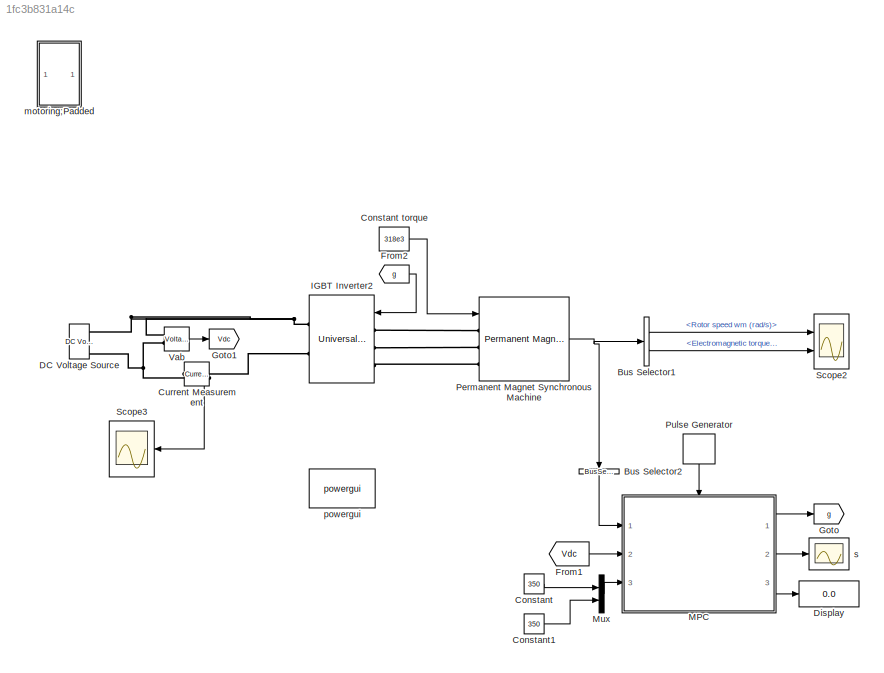
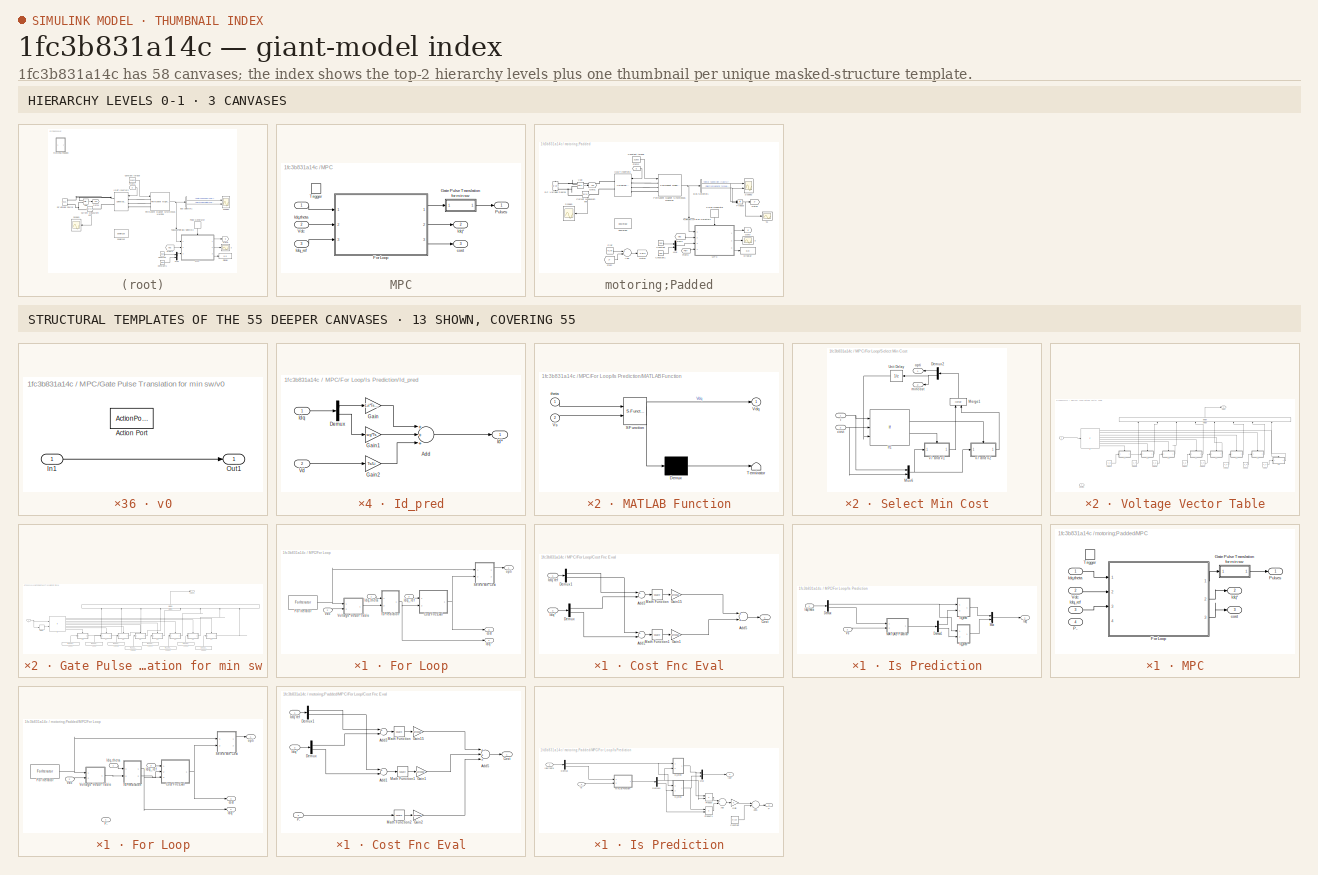
[diagram: thumbnail index - top-2 hierarchy levels (3 canvases) + 13 structural-template representatives of the remaining 55 canvases]
MODEL slx_1fc3b831a14c
KIND model
CONFIG AbsTol = auto
CONFIG FixedStep = auto
CONFIG MaxStep = auto
CONFIG MinStep = auto
CONFIG RelTol = 1e-3
CONFIG SampleTimeConstraint = Unconstrained
CONFIG Solver = VariableStepAuto
CONFIG SolverMode = Auto
CONFIG SolverName = VariableStepAuto
CONFIG StartTime = 0.0
CONFIG StopTime = end_time
BLOCK [BusSelector] Bus Selector1
  OutputSignals = Rotor speed wm (rad/s),Electromagnetic torque Te (N*m)
  Ports = [1, 2]
BLOCK [BusSelector] Bus Selector2
  OutputAsBus = on
  OutputSignals = Stator current is_d (A),Stator current is_q (A),Rotor angle thetam (rad)
  Ports = [1, 1]
BLOCK [Constant] Constant
  Value = 350
BLOCK [Constant] Constant torque
  Value = 318e3
BLOCK [Constant] Constant1
  Value = 350
BLOCK [Reference] Current Measurement  REF=powerlib/Measurements/Current Measurement
  Ports = [0, 1, 0, 0, 0, 1, 1]
  SourceBlock = powerlib/Measurements/Current Measurement
  SourceType = Current Measurement
  UserDataPersistent = on
BLOCK [Reference] DC Voltage Source  REF=powerlib/Electrical
Sources/DC Voltage Source
  Ports = [0, 0, 0, 0, 0, 1, 1]
  SourceBlock = powerlib/Electrical\nSources/DC Voltage Source
  SourceType = DC Voltage Source
BLOCK [Display] Display
  Decimation = 1
  Ports = [1]
BLOCK [From] From1
  GotoTag = Vdc
BLOCK [From] From2
  GotoTag = g
BLOCK [Goto] Goto
  GotoTag = g
BLOCK [Goto] Goto1
  GotoTag = Vdc
BLOCK [Reference] IGBT Inverter2  REF=powerlib/Power
Electronics/Universal Bridge
  AttributesFormatString = \n
  Ports = [1, 0, 0, 0, 0, 3, 2]
  SourceBlock = powerlib/Power\nElectronics/Universal Bridge
  SourceType = Universal Bridge
BLOCK [SubSystem] MPC
  Ports = [3, 3, 0, 1]
  RequestExecContextInheritance = off
  TreatAsAtomicUnit = on
  Variant = off
BLOCK [SubSystem] MPC/For Loop
  Ports = [3, 3]
  RequestExecContextInheritance = off
  TreatAsAtomicUnit = on
  Variant = off
BLOCK [SubSystem] MPC/For Loop/Cost Fnc Eval
  Ports = [2, 1]
  RequestExecContextInheritance = off
  Variant = off
BLOCK [Sum] MPC/For Loop/Cost Fnc Eval/Add1
  InputSameDT = off
  Inputs = +-
  OutDataTypeStr = Inherit: Inherit via internal rule
  Ports = [2, 1]
  SaturateOnIntegerOverflow = off
BLOCK [Sum] MPC/For Loop/Cost Fnc Eval/Add3
  InputSameDT = off
  Inputs = +-
  OutDataTypeStr = Inherit: Inherit via internal rule
  Ports = [2, 1]
  SaturateOnIntegerOverflow = off
BLOCK [Sum] MPC/For Loop/Cost Fnc Eval/Add5
  InputSameDT = off
  OutDataTypeStr = Inherit: Inherit via internal rule
  Ports = [2, 1]
  SaturateOnIntegerOverflow = off
BLOCK [Outport] MPC/For Loop/Cost Fnc Eval/Cost
  IconDisplay = Port number
BLOCK [Demux] MPC/For Loop/Cost Fnc Eval/Demux
  DisplayOption = bar
  Outputs = 2
  Ports = [1, 2]
BLOCK [Demux] MPC/For Loop/Cost Fnc Eval/Demux1
  DisplayOption = bar
  Outputs = 2
  Ports = [1, 2]
BLOCK [Gain] MPC/For Loop/Cost Fnc Eval/Gain1
  Gain = Lambda2
  OutDataTypeStr = Inherit: Inherit via internal rule
  ParamDataTypeStr = Inherit: Inherit via internal rule
  SaturateOnIntegerOverflow = off
BLOCK [Gain] MPC/For Loop/Cost Fnc Eval/Gain15
  Gain = Lambda1
  OutDataTypeStr = Inherit: Inherit via internal rule
  ParamDataTypeStr = Inherit: Inherit via internal rule
  SaturateOnIntegerOverflow = off
BLOCK [Inport] MPC/For Loop/Cost Fnc Eval/Idq ref
  IconDisplay = Port number
BLOCK [Inport] MPC/For Loop/Cost Fnc Eval/Idq* 
  IconDisplay = Port number
  Port = 2
BLOCK [Math] MPC/For Loop/Cost Fnc Eval/Math Function
  Operator = square
  Ports = [1, 1]
BLOCK [Math] MPC/For Loop/Cost Fnc Eval/Math Function1
  Operator = square
  Ports = [1, 1]
BLOCK [ForIterator] MPC/For Loop/For Iterator
  IterationLimit = 8
  IterationVariableDataType = double
  Ports = [0, 1]
BLOCK [Outport] MPC/For Loop/Idq*
  IconDisplay = Port number
  Port = 2
BLOCK [Inport] MPC/For Loop/Idq,theta
  IconDisplay = Port number
BLOCK [Inport] MPC/For Loop/Idq_ref
  IconDisplay = Port number
  Port = 3
BLOCK [SubSystem] MPC/For Loop/Is Prediction
  Ports = [2, 1]
  RequestExecContextInheritance = off
  Variant = off
BLOCK [Demux] MPC/For Loop/Is Prediction/Demux
  DisplayOption = bar
  Outputs = 2
  Ports = [1, 2]
BLOCK [Demux] MPC/For Loop/Is Prediction/Demux1
  DisplayOption = bar
  Outputs = 2
  Ports = [1, 2]
BLOCK [SubSystem] MPC/For Loop/Is Prediction/Id_pred
  Ports = [2, 1]
  RequestExecContextInheritance = off
  Variant = off
BLOCK [Sum] MPC/For Loop/Is Prediction/Id_pred/Add
  InputSameDT = off
  Inputs = +++
  OutDataTypeStr = Inherit: Inherit via internal rule
  Ports = [3, 1]
  SaturateOnIntegerOverflow = off
BLOCK [Demux] MPC/For Loop/Is Prediction/Id_pred/Demux
  DisplayOption = bar
  Outputs = 2
  Ports = [1, 2]
BLOCK [Gain] MPC/For Loop/Is Prediction/Id_pred/Gain
  Gain = 1-ri*Ts/Li
  OutDataTypeStr = Inherit: Inherit via internal rule
  ParamDataTypeStr = Inherit: Inherit via internal rule
  SaturateOnIntegerOverflow = off
BLOCK [Gain] MPC/For Loop/Is Prediction/Id_pred/Gain1
  Gain = wg*Ts
  OutDataTypeStr = Inherit: Inherit via internal rule
  ParamDataTypeStr = Inherit: Inherit via internal rule
  SaturateOnIntegerOverflow = off
BLOCK [Gain] MPC/For Loop/Is Prediction/Id_pred/Gain2
  Gain = Ts/Li
  OutDataTypeStr = Inherit: Inherit via internal rule
  ParamDataTypeStr = Inherit: Inherit via internal rule
  SaturateOnIntegerOverflow = off
BLOCK [Outport] MPC/For Loop/Is Prediction/Id_pred/Id*
  IconDisplay = Port number
BLOCK [Inport] MPC/For Loop/Is Prediction/Id_pred/Idq
  IconDisplay = Port number
BLOCK [Inport] MPC/For Loop/Is Prediction/Id_pred/Vd
  IconDisplay = Port number
  Port = 2
BLOCK [Outport] MPC/For Loop/Is Prediction/Idq*
  IconDisplay = Port number
BLOCK [Inport] MPC/For Loop/Is Prediction/Idq,theta
  IconDisplay = Port number
BLOCK [SubSystem] MPC/For Loop/Is Prediction/Iq_pred
  Ports = [2, 1]
  RequestExecContextInheritance = off
  Variant = off
BLOCK [Sum] MPC/For Loop/Is Prediction/Iq_pred/Add
  InputSameDT = off
  Inputs = +++
  OutDataTypeStr = Inherit: Inherit via internal rule
  Ports = [3, 1]
  SaturateOnIntegerOverflow = off
BLOCK [Demux] MPC/For Loop/Is Prediction/Iq_pred/Demux
  DisplayOption = bar
  Outputs = 2
  Ports = [1, 2]
BLOCK [Gain] MPC/For Loop/Is Prediction/Iq_pred/Gain
  Gain = -wg*Ts
  OutDataTypeStr = Inherit: Inherit via internal rule
  ParamDataTypeStr = Inherit: Inherit via internal rule
  SaturateOnIntegerOverflow = off
BLOCK [Gain] MPC/For Loop/Is Prediction/Iq_pred/Gain1
  Gain = 1-ri*Ts/Li
  OutDataTypeStr = Inherit: Inherit via internal rule
  ParamDataTypeStr = Inherit: Inherit via internal rule
  SaturateOnIntegerOverflow = off
BLOCK [Gain] MPC/For Loop/Is Prediction/Iq_pred/Gain2
  Gain = Ts/Li
  OutDataTypeStr = Inherit: Inherit via internal rule
  ParamDataTypeStr = Inherit: Inherit via internal rule
  SaturateOnIntegerOverflow = off
BLOCK [Inport] MPC/For Loop/Is Prediction/Iq_pred/Idq
  IconDisplay = Port number
BLOCK [Outport] MPC/For Loop/Is Prediction/Iq_pred/Iq*
  IconDisplay = Port number
BLOCK [Inport] MPC/For Loop/Is Prediction/Iq_pred/Vq 
  IconDisplay = Port number
  Port = 2
BLOCK [SubSystem] MPC/For Loop/Is Prediction/MATLAB Function
  ErrorFcn = Stateflow.Translate.translate
  PermitHierarchicalResolution = ExplicitOnly
  Ports = [2, 1]
  RequestExecContextInheritance = off
  SFBlockType = MATLAB Function
  TreatAsAtomicUnit = on
  Variant = off
BLOCK [Demux] MPC/For Loop/Is Prediction/MATLAB Function/ Demux 
  Outputs = 1
  Ports = [1, 1]
BLOCK [S-Function] MPC/For Loop/Is Prediction/MATLAB Function/ SFunction 
  EnableBusSupport = on
  FunctionName = sf_sfun
  PortCounts = [2 2]
  Ports = [2, 2]
  SFunctionDeploymentMode = off
  Tag = Stateflow S-Function abc 2
BLOCK [Terminator] MPC/For Loop/Is Prediction/MATLAB Function/ Terminator 
BLOCK [Outport] MPC/For Loop/Is Prediction/MATLAB Function/Vdq
  IconDisplay = Port number
BLOCK [Inport] MPC/For Loop/Is Prediction/MATLAB Function/Vs
  IconDisplay = Port number
  Port = 2
BLOCK [Inport] MPC/For Loop/Is Prediction/MATLAB Function/theta
  IconDisplay = Port number
BLOCK [Mux] MPC/For Loop/Is Prediction/Mux
  DisplayOption = bar
  Inputs = 2
  Ports = [2, 1]
BLOCK [Inport] MPC/For Loop/Is Prediction/Vs
  IconDisplay = Port number
  Port = 2
BLOCK [SubSystem] MPC/For Loop/Select Min Cost
  Ports = [2, 2]
  RequestExecContextInheritance = off
  Variant = off
BLOCK [Demux] MPC/For Loop/Select Min Cost/Demux2
  DisplayOption = bar
  Outputs = 2
  Ports = [1, 2]
BLOCK [If] MPC/For Loop/Select Min Cost/If1
  ElseIfExpressions = u2<=u3
  IfExpression = u1==1
  NumInputs = 3
  Ports = [3, 2]
  ShowElse = off
BLOCK [Merge] MPC/For Loop/Select Min Cost/Merge1
  Ports = [2, 1]
BLOCK [Mux] MPC/For Loop/Select Min Cost/Mux6
  DisplayOption = bar
  Inputs = 2
  Ports = [2, 1]
BLOCK [UnitDelay] MPC/For Loop/Select Min Cost/Unit Delay
  InputProcessing = Elements as channels (sample based)
  SampleTime = -1
BLOCK [Inport] MPC/For Loop/Select Min Cost/cost
  IconDisplay = Port number
  Port = 2
BLOCK [Inport] MPC/For Loop/Select Min Cost/i
  IconDisplay = Port number
BLOCK [Outport] MPC/For Loop/Select Min Cost/mincost
  IconDisplay = Port number
  Port = 2
BLOCK [Outport] MPC/For Loop/Select Min Cost/opti
  IconDisplay = Port number
BLOCK [SubSystem] MPC/For Loop/Select Min Cost/v7 and v1
  Ports = [1, 1, 0, 0, 0, 0, 0, 1]
  RequestExecContextInheritance = off
  TreatAsAtomicUnit = on
  Variant = off
BLOCK [ActionPort] MPC/For Loop/Select Min Cost/v7 and v1/Action Port
  ActionType = elseif
BLOCK [Inport] MPC/For Loop/Select Min Cost/v7 and v1/In1
  IconDisplay = Port number
BLOCK [Outport] MPC/For Loop/Select Min Cost/v7 and v1/Out1
  IconDisplay = Port number
BLOCK [SubSystem] MPC/For Loop/Select Min Cost/v7 and v2
  Ports = [1, 1, 0, 0, 0, 0, 0, 1]
  RequestExecContextInheritance = off
  TreatAsAtomicUnit = on
  Variant = off
BLOCK [ActionPort] MPC/For Loop/Select Min Cost/v7 and v2/Action Port
  ActionType = then
BLOCK [Inport] MPC/For Loop/Select Min Cost/v7 and v2/In1
  IconDisplay = Port number
BLOCK [Outport] MPC/For Loop/Select Min Cost/v7 and v2/Out1
  IconDisplay = Port number
BLOCK [Inport] MPC/For Loop/Vdc
  IconDisplay = Port number
  Port = 2
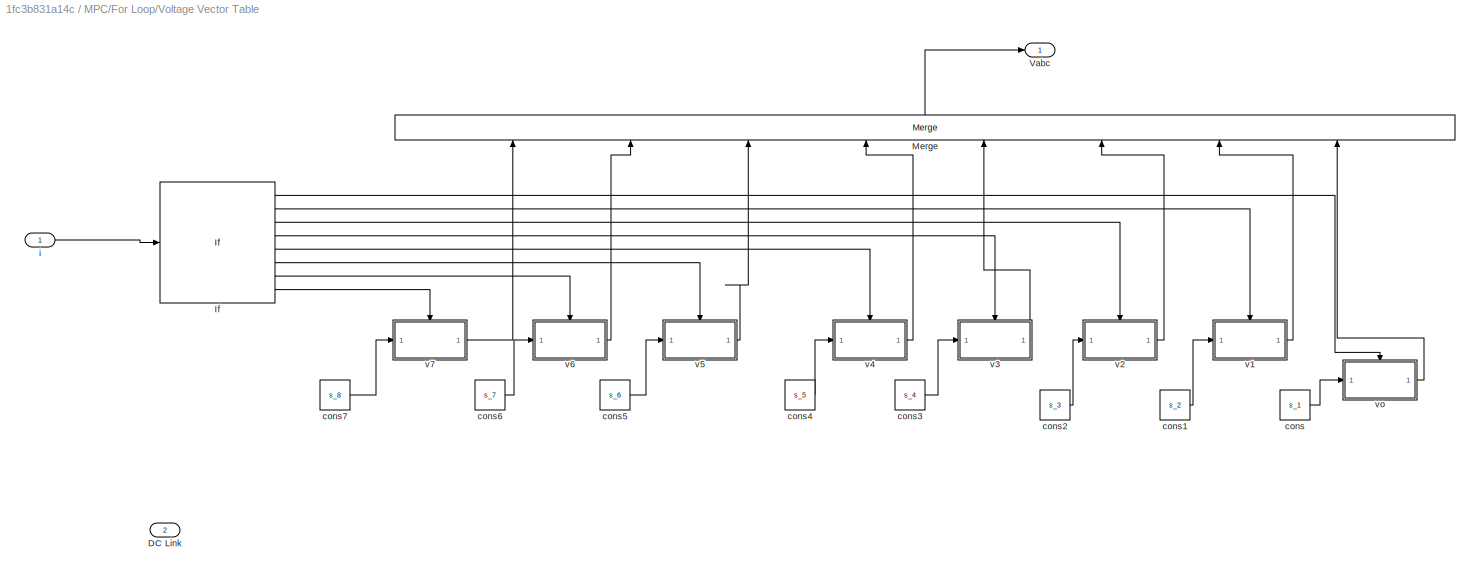
BLOCK [SubSystem] MPC/For Loop/Voltage Vector Table
  Ports = [2, 1]
  RequestExecContextInheritance = off
  Variant = off
BLOCK [Inport] MPC/For Loop/Voltage Vector Table/DC Link
  IconDisplay = Port number
  Port = 2
BLOCK [If] MPC/For Loop/Voltage Vector Table/If
  ElseIfExpressions = u1==2, u1==3, u1==4, u1==5, u1==6, u1==7,u1==8
  IfExpression = u1==1
  Ports = [1, 8]
  ShowElse = off
BLOCK [Merge] MPC/For Loop/Voltage Vector Table/Merge
  Inputs = 8
  Ports = [8, 1]
BLOCK [Outport] MPC/For Loop/Voltage Vector Table/Vabc
  IconDisplay = Port number
BLOCK [Constant] MPC/For Loop/Voltage Vector Table/cons
  Value = s_1
BLOCK [Constant] MPC/For Loop/Voltage Vector Table/cons1
  Value = s_2
BLOCK [Constant] MPC/For Loop/Voltage Vector Table/cons2
  Value = s_3
BLOCK [Constant] MPC/For Loop/Voltage Vector Table/cons3
  Value = s_4
BLOCK [Constant] MPC/For Loop/Voltage Vector Table/cons4
  Value = s_5
BLOCK [Constant] MPC/For Loop/Voltage Vector Table/cons5
  Value = s_6
BLOCK [Constant] MPC/For Loop/Voltage Vector Table/cons6
  Value = s_7
BLOCK [Constant] MPC/For Loop/Voltage Vector Table/cons7
  Value = s_8
BLOCK [Inport] MPC/For Loop/Voltage Vector Table/i
  IconDisplay = Port number
BLOCK [SubSystem] MPC/For Loop/Voltage Vector Table/v1
  Ports = [1, 1, 0, 0, 0, 0, 0, 1]
  RequestExecContextInheritance = off
  TreatAsAtomicUnit = on
  Variant = off
BLOCK [ActionPort] MPC/For Loop/Voltage Vector Table/v1/Action Port
  ActionType = elseif
BLOCK [Inport] MPC/For Loop/Voltage Vector Table/v1/In1
  IconDisplay = Port number
BLOCK [Outport] MPC/For Loop/Voltage Vector Table/v1/Out1
  IconDisplay = Port number
BLOCK [SubSystem] MPC/For Loop/Voltage Vector Table/v2
  Ports = [1, 1, 0, 0, 0, 0, 0, 1]
  RequestExecContextInheritance = off
  TreatAsAtomicUnit = on
  Variant = off
BLOCK [ActionPort] MPC/For Loop/Voltage Vector Table/v2/Action Port
  ActionType = elseif
BLOCK [Inport] MPC/For Loop/Voltage Vector Table/v2/In1
  IconDisplay = Port number
BLOCK [Outport] MPC/For Loop/Voltage Vector Table/v2/Out1
  IconDisplay = Port number
BLOCK [SubSystem] MPC/For Loop/Voltage Vector Table/v3
  Ports = [1, 1, 0, 0, 0, 0, 0, 1]
  RequestExecContextInheritance = off
  TreatAsAtomicUnit = on
  Variant = off
BLOCK [ActionPort] MPC/For Loop/Voltage Vector Table/v3/Action Port
  ActionType = elseif
BLOCK [Inport] MPC/For Loop/Voltage Vector Table/v3/In1
  IconDisplay = Port number
BLOCK [Outport] MPC/For Loop/Voltage Vector Table/v3/Out1
  IconDisplay = Port number
BLOCK [SubSystem] MPC/For Loop/Voltage Vector Table/v4
  Ports = [1, 1, 0, 0, 0, 0, 0, 1]
  RequestExecContextInheritance = off
  TreatAsAtomicUnit = on
  Variant = off
BLOCK [ActionPort] MPC/For Loop/Voltage Vector Table/v4/Action Port
  ActionType = elseif
BLOCK [Inport] MPC/For Loop/Voltage Vector Table/v4/In1
  IconDisplay = Port number
BLOCK [Outport] MPC/For Loop/Voltage Vector Table/v4/Out1
  IconDisplay = Port number
BLOCK [SubSystem] MPC/For Loop/Voltage Vector Table/v5
  Ports = [1, 1, 0, 0, 0, 0, 0, 1]
  RequestExecContextInheritance = off
  TreatAsAtomicUnit = on
  Variant = off
BLOCK [ActionPort] MPC/For Loop/Voltage Vector Table/v5/Action Port
  ActionType = elseif
BLOCK [Inport] MPC/For Loop/Voltage Vector Table/v5/In1
  IconDisplay = Port number
BLOCK [Outport] MPC/For Loop/Voltage Vector Table/v5/Out1
  IconDisplay = Port number
BLOCK [SubSystem] MPC/For Loop/Voltage Vector Table/v6
  Ports = [1, 1, 0, 0, 0, 0, 0, 1]
  RequestExecContextInheritance = off
  TreatAsAtomicUnit = on
  Variant = off
BLOCK [ActionPort] MPC/For Loop/Voltage Vector Table/v6/Action Port
  ActionType = elseif
BLOCK [Inport] MPC/For Loop/Voltage Vector Table/v6/In1
  IconDisplay = Port number
BLOCK [Outport] MPC/For Loop/Voltage Vector Table/v6/Out1
  IconDisplay = Port number
BLOCK [SubSystem] MPC/For Loop/Voltage Vector Table/v7 
  Ports = [1, 1, 0, 0, 0, 0, 0, 1]
  RequestExecContextInheritance = off
  TreatAsAtomicUnit = on
  Variant = off
BLOCK [ActionPort] MPC/For Loop/Voltage Vector Table/v7 /Action Port
  ActionType = elseif
BLOCK [Inport] MPC/For Loop/Voltage Vector Table/v7 /In1
  IconDisplay = Port number
BLOCK [Outport] MPC/For Loop/Voltage Vector Table/v7 /Out1
  IconDisplay = Port number
BLOCK [SubSystem] MPC/For Loop/Voltage Vector Table/vo
  Ports = [1, 1, 0, 0, 0, 0, 0, 1]
  RequestExecContextInheritance = off
  TreatAsAtomicUnit = on
  Variant = off
BLOCK [ActionPort] MPC/For Loop/Voltage Vector Table/vo/Action Port
  ActionType = then
BLOCK [Inport] MPC/For Loop/Voltage Vector Table/vo/In1
  IconDisplay = Port number
BLOCK [Outport] MPC/For Loop/Voltage Vector Table/vo/Out1
  IconDisplay = Port number
BLOCK [Outport] MPC/For Loop/cost
  IconDisplay = Port number
  Port = 3
BLOCK [Outport] MPC/For Loop/opti
  IconDisplay = Port number
BLOCK [SubSystem] MPC/Gate Pulse Translation for min sw
  Ports = [1, 1]
  RequestExecContextInheritance = off
  Variant = off
BLOCK [Delay] MPC/Gate Pulse Translation for min sw/Delay
  DelayLength = 1
  InitialCondition = 0
  InputPortMap = u0
  Ports = [1, 1]
BLOCK [If] MPC/Gate Pulse Translation for min sw/If
  ElseIfExpressions = u1==2, u1==3, u1==4, u1==5, u1==6,(((u1==7)&(u2==2)) | ((u1==7)&(u2==4)) | ((u1==7)&(u2==6)))
  IfExpression = u1==1
  NumInputs = 2
  Ports = [2, 8]
BLOCK [Merge] MPC/Gate Pulse Translation for min sw/Merge
  Inputs = 8
  Ports = [8, 1]
BLOCK [Constant] MPC/Gate Pulse Translation for min sw/cons
  Value = [1,0,1,0,1,0]
BLOCK [Constant] MPC/Gate Pulse Translation for min sw/cons1
  Value = [1,0,0,1,0,1]
BLOCK [Constant] MPC/Gate Pulse Translation for min sw/cons2
  Value = [1,0,1,0,0,1]
BLOCK [Constant] MPC/Gate Pulse Translation for min sw/cons3
  Value = [0,1,1,0,0,1]
BLOCK [Constant] MPC/Gate Pulse Translation for min sw/cons4
  Value = [0,1,1,0,1,0]
BLOCK [Constant] MPC/Gate Pulse Translation for min sw/cons5
  Value = [0,1,0,1,1,0]
BLOCK [Constant] MPC/Gate Pulse Translation for min sw/cons6
  Value = [1,0,0,1,1,0]
BLOCK [Constant] MPC/Gate Pulse Translation for min sw/cons7
  Value = [0,1,0,1,0,1]
BLOCK [Inport] MPC/Gate Pulse Translation for min sw/i
  IconDisplay = Port number
BLOCK [Outport] MPC/Gate Pulse Translation for min sw/pulses
  IconDisplay = Port number
BLOCK [SubSystem] MPC/Gate Pulse Translation for min sw/v0
  Ports = [1, 1, 0, 0, 0, 0, 0, 1]
  RequestExecContextInheritance = off
  TreatAsAtomicUnit = on
  Variant = off
BLOCK [ActionPort] MPC/Gate Pulse Translation for min sw/v0/Action Port
  ActionType = else
BLOCK [Inport] MPC/Gate Pulse Translation for min sw/v0/In1
  IconDisplay = Port number
BLOCK [Outport] MPC/Gate Pulse Translation for min sw/v0/Out1
  IconDisplay = Port number
BLOCK [SubSystem] MPC/Gate Pulse Translation for min sw/v1
  Ports = [1, 1, 0, 0, 0, 0, 0, 1]
  RequestExecContextInheritance = off
  TreatAsAtomicUnit = on
  Variant = off
BLOCK [ActionPort] MPC/Gate Pulse Translation for min sw/v1/Action Port
  ActionType = then
BLOCK [Inport] MPC/Gate Pulse Translation for min sw/v1/In1
  IconDisplay = Port number
BLOCK [Outport] MPC/Gate Pulse Translation for min sw/v1/Out1
  IconDisplay = Port number
BLOCK [SubSystem] MPC/Gate Pulse Translation for min sw/v2
  Ports = [1, 1, 0, 0, 0, 0, 0, 1]
  RequestExecContextInheritance = off
  TreatAsAtomicUnit = on
  Variant = off
BLOCK [ActionPort] MPC/Gate Pulse Translation for min sw/v2/Action Port
  ActionType = elseif
BLOCK [Inport] MPC/Gate Pulse Translation for min sw/v2/In1
  IconDisplay = Port number
BLOCK [Outport] MPC/Gate Pulse Translation for min sw/v2/Out1
  IconDisplay = Port number
BLOCK [SubSystem] MPC/Gate Pulse Translation for min sw/v3
  Ports = [1, 1, 0, 0, 0, 0, 0, 1]
  RequestExecContextInheritance = off
  TreatAsAtomicUnit = on
  Variant = off
BLOCK [ActionPort] MPC/Gate Pulse Translation for min sw/v3/Action Port
  ActionType = elseif
BLOCK [Inport] MPC/Gate Pulse Translation for min sw/v3/In1
  IconDisplay = Port number
BLOCK [Outport] MPC/Gate Pulse Translation for min sw/v3/Out1
  IconDisplay = Port number
BLOCK [SubSystem] MPC/Gate Pulse Translation for min sw/v4
  Ports = [1, 1, 0, 0, 0, 0, 0, 1]
  RequestExecContextInheritance = off
  TreatAsAtomicUnit = on
  Variant = off
BLOCK [ActionPort] MPC/Gate Pulse Translation for min sw/v4/Action Port
  ActionType = elseif
BLOCK [Inport] MPC/Gate Pulse Translation for min sw/v4/In1
  IconDisplay = Port number
BLOCK [Outport] MPC/Gate Pulse Translation for min sw/v4/Out1
  IconDisplay = Port number
BLOCK [SubSystem] MPC/Gate Pulse Translation for min sw/v5
  Ports = [1, 1, 0, 0, 0, 0, 0, 1]
  RequestExecContextInheritance = off
  TreatAsAtomicUnit = on
  Variant = off
BLOCK [ActionPort] MPC/Gate Pulse Translation for min sw/v5/Action Port
  ActionType = elseif
BLOCK [Inport] MPC/Gate Pulse Translation for min sw/v5/In1
  IconDisplay = Port number
BLOCK [Outport] MPC/Gate Pulse Translation for min sw/v5/Out1
  IconDisplay = Port number
BLOCK [SubSystem] MPC/Gate Pulse Translation for min sw/v6
  Ports = [1, 1, 0, 0, 0, 0, 0, 1]
  RequestExecContextInheritance = off
  TreatAsAtomicUnit = on
  Variant = off
BLOCK [ActionPort] MPC/Gate Pulse Translation for min sw/v6/Action Port
  ActionType = elseif
BLOCK [Inport] MPC/Gate Pulse Translation for min sw/v6/In1
  IconDisplay = Port number
BLOCK [Outport] MPC/Gate Pulse Translation for min sw/v6/Out1
  IconDisplay = Port number
BLOCK [SubSystem] MPC/Gate Pulse Translation for min sw/v7
  Ports = [1, 1, 0, 0, 0, 0, 0, 1]
  RequestExecContextInheritance = off
  TreatAsAtomicUnit = on
  Variant = off
BLOCK [ActionPort] MPC/Gate Pulse Translation for min sw/v7/Action Port
  ActionType = elseif
BLOCK [Inport] MPC/Gate Pulse Translation for min sw/v7/In1
  IconDisplay = Port number
BLOCK [Outport] MPC/Gate Pulse Translation for min sw/v7/Out1
  IconDisplay = Port number
BLOCK [Outport] MPC/Idq*
  IconDisplay = Port number
  Port = 2
BLOCK [Inport] MPC/Idq,theta
  IconDisplay = Port number
BLOCK [Inport] MPC/Idq_ref
  IconDisplay = Port number
  Port = 3
BLOCK [Outport] MPC/Pulses
  IconDisplay = Port number
BLOCK [TriggerPort] MPC/Trigger
  Ports = []
  StatesWhenEnabling = held
  VariantControl = Variant
BLOCK [Inport] MPC/Vdc
  IconDisplay = Port number
  Port = 2
BLOCK [Outport] MPC/cost
  IconDisplay = Port number
  Port = 3
BLOCK [Mux] Mux
  DisplayOption = bar
  Inputs = 2
  Ports = [2, 1]
BLOCK [Reference] Permanent Magnet Synchronous Machine  REF=powerlib/Machines/Permanent Magnet
Synchronous Machine
  Ports = [1, 1, 0, 0, 0, 3]
  SourceBlock = powerlib/Machines/Permanent Magnet\nSynchronous Machine
  SourceType = Permanent Magnet Synchronous Machine
BLOCK [DiscretePulseGenerator] Pulse Generator
  Period = Ts*0.01
  Ports = [0, 1]
  PulseType = Time based
  PulseWidth = 20
BLOCK [Scope] Scope2
  NumInputPorts = 2
  Ports = [2]
  ScopeSpecificationString = Simulink.scopes.TimeScopeBlockCfg('CurrentConfiguration', extmgr.ConfigurationSet(extmgr.Configuration('Core','General UI',true,'FigureColor',[1 1 1]),extmgr.Configuration('Core','Source UI',true),extmgr.Configuration('Sources','WiredSimulink',true),extmgr.Configuration('Visuals','Time Domain',true,'SerializedDisplays',{struct('MinYLimReal','-0.01471','MaxYLimReal','0.10252','YLabelReal','','MinYL...<+2555ch>
BLOCK [Scope] Scope3
  Ports = [1]
  ScopeSpecificationString = Simulink.scopes.TimeScopeBlockCfg('CurrentConfiguration', extmgr.ConfigurationSet(extmgr.Configuration('Core','General UI',true),extmgr.Configuration('Core','Source UI',true),extmgr.Configuration('Sources','WiredSimulink',true,'DataLoggingVariableName','ScopeData2'),extmgr.Configuration('Visuals','Time Domain',true,'SerializedDisplays',{struct('MinYLimReal','-0.018','MaxYLimReal','0.002','YLabelRe...<+1439ch>
BLOCK [Reference] Vab  REF=powerlib/Measurements/Voltage Measurement
  AttributesFormatString = \n
  Ports = [0, 1, 0, 0, 0, 2]
  SourceBlock = powerlib/Measurements/Voltage Measurement
  SourceType = Voltage Measurement
  Tag = PoWeRsYsTeMmEaSuReMeNt
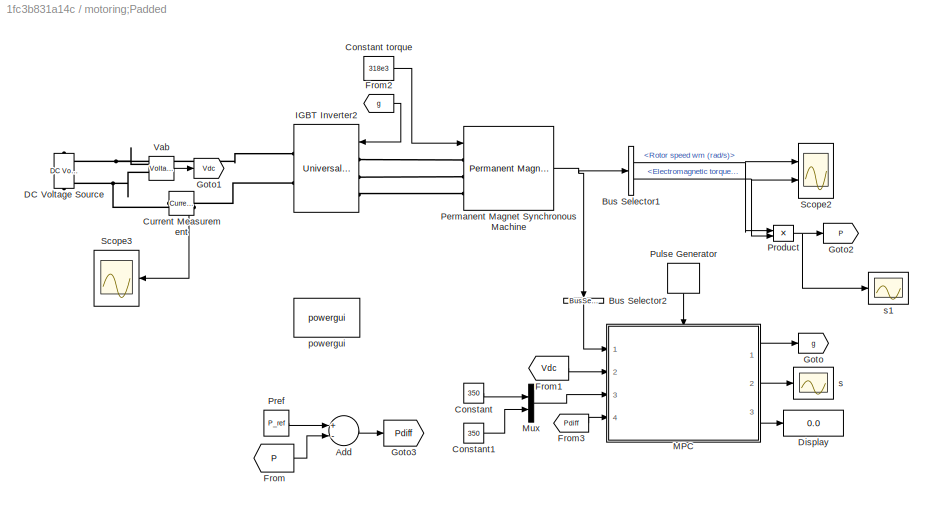
BLOCK [SubSystem] motoring;Padded
  Commented = on
  Ports = []
  RequestExecContextInheritance = off
  Variant = off
BLOCK [Sum] motoring;Padded/Add
  InputSameDT = off
  Inputs = +-
  OutDataTypeStr = Inherit: Inherit via internal rule
  Ports = [2, 1]
  SaturateOnIntegerOverflow = off
BLOCK [BusSelector] motoring;Padded/Bus Selector1
  OutputSignals = Rotor speed wm (rad/s),Electromagnetic torque Te (N*m)
  Ports = [1, 2]
BLOCK [BusSelector] motoring;Padded/Bus Selector2
  OutputAsBus = on
  OutputSignals = Stator current is_d (A),Stator current is_q (A),Rotor angle thetam (rad)
  Ports = [1, 1]
BLOCK [Constant] motoring;Padded/Constant
  Value = 350
BLOCK [Constant] motoring;Padded/Constant torque
  Value = 318e3
BLOCK [Constant] motoring;Padded/Constant1
  Value = 350
BLOCK [Reference] motoring;Padded/Current Measurement  REF=powerlib/Measurements/Current Measurement
  Ports = [0, 1, 0, 0, 0, 1, 1]
  SourceBlock = powerlib/Measurements/Current Measurement
  SourceType = Current Measurement
  UserDataPersistent = on
BLOCK [Reference] motoring;Padded/DC Voltage Source  REF=powerlib/Electrical
Sources/DC Voltage Source
  Ports = [0, 0, 0, 0, 0, 1, 1]
  SourceBlock = powerlib/Electrical\nSources/DC Voltage Source
  SourceType = DC Voltage Source
BLOCK [Display] motoring;Padded/Display
  Decimation = 1
  Ports = [1]
BLOCK [From] motoring;Padded/From
  GotoTag = P
BLOCK [From] motoring;Padded/From1
  GotoTag = Vdc
BLOCK [From] motoring;Padded/From2
  GotoTag = g
BLOCK [From] motoring;Padded/From3
  GotoTag = Pdiff
BLOCK [Goto] motoring;Padded/Goto
  GotoTag = g
BLOCK [Goto] motoring;Padded/Goto1
  GotoTag = Vdc
BLOCK [Goto] motoring;Padded/Goto2
  GotoTag = P
BLOCK [Goto] motoring;Padded/Goto3
  GotoTag = Pdiff
BLOCK [Reference] motoring;Padded/IGBT Inverter2  REF=powerlib/Power
Electronics/Universal Bridge
  AttributesFormatString = \n
  Ports = [1, 0, 0, 0, 0, 3, 2]
  SourceBlock = powerlib/Power\nElectronics/Universal Bridge
  SourceType = Universal Bridge
BLOCK [SubSystem] motoring;Padded/MPC
  Ports = [4, 3, 0, 1]
  RequestExecContextInheritance = off
  TreatAsAtomicUnit = on
  Variant = off
BLOCK [SubSystem] motoring;Padded/MPC/For Loop
  Ports = [4, 3]
  RequestExecContextInheritance = off
  TreatAsAtomicUnit = on
  Variant = off
BLOCK [SubSystem] motoring;Padded/MPC/For Loop/Cost Fnc Eval
  Ports = [3, 1]
  RequestExecContextInheritance = off
  Variant = off
BLOCK [Sum] motoring;Padded/MPC/For Loop/Cost Fnc Eval/Add1
  InputSameDT = off
  Inputs = +-
  OutDataTypeStr = Inherit: Inherit via internal rule
  Ports = [2, 1]
  SaturateOnIntegerOverflow = off
BLOCK [Sum] motoring;Padded/MPC/For Loop/Cost Fnc Eval/Add3
  InputSameDT = off
  Inputs = +-
  OutDataTypeStr = Inherit: Inherit via internal rule
  Ports = [2, 1]
  SaturateOnIntegerOverflow = off
BLOCK [Sum] motoring;Padded/MPC/For Loop/Cost Fnc Eval/Add5
  InputSameDT = off
  Inputs = +++
  OutDataTypeStr = Inherit: Inherit via internal rule
  Ports = [3, 1]
  SaturateOnIntegerOverflow = off
BLOCK [Outport] motoring;Padded/MPC/For Loop/Cost Fnc Eval/Cost
  IconDisplay = Port number
BLOCK [Demux] motoring;Padded/MPC/For Loop/Cost Fnc Eval/Demux
  DisplayOption = bar
  Outputs = 2
  Ports = [1, 2]
BLOCK [Demux] motoring;Padded/MPC/For Loop/Cost Fnc Eval/Demux1
  DisplayOption = bar
  Outputs = 2
  Ports = [1, 2]
BLOCK [Gain] motoring;Padded/MPC/For Loop/Cost Fnc Eval/Gain1
  Gain = Lambdaq
  OutDataTypeStr = Inherit: Inherit via internal rule
  ParamDataTypeStr = Inherit: Inherit via internal rule
  SaturateOnIntegerOverflow = off
BLOCK [Gain] motoring;Padded/MPC/For Loop/Cost Fnc Eval/Gain15
  Gain = Lambdad
  OutDataTypeStr = Inherit: Inherit via internal rule
  ParamDataTypeStr = Inherit: Inherit via internal rule
  SaturateOnIntegerOverflow = off
BLOCK [Gain] motoring;Padded/MPC/For Loop/Cost Fnc Eval/Gain2
  Gain = LambdaP
  OutDataTypeStr = Inherit: Inherit via internal rule
  ParamDataTypeStr = Inherit: Inherit via internal rule
  SaturateOnIntegerOverflow = off
BLOCK [Inport] motoring;Padded/MPC/For Loop/Cost Fnc Eval/Idq ref
  IconDisplay = Port number
BLOCK [Inport] motoring;Padded/MPC/For Loop/Cost Fnc Eval/Idq* 
  IconDisplay = Port number
  Port = 2
BLOCK [Math] motoring;Padded/MPC/For Loop/Cost Fnc Eval/Math Function
  Operator = square
  Ports = [1, 1]
BLOCK [Math] motoring;Padded/MPC/For Loop/Cost Fnc Eval/Math Function1
  Operator = square
  Ports = [1, 1]
BLOCK [Math] motoring;Padded/MPC/For Loop/Cost Fnc Eval/Math Function2
  Operator = square
  Ports = [1, 1]
BLOCK [Inport] motoring;Padded/MPC/For Loop/Cost Fnc Eval/P-
  IconDisplay = Port number
  Port = 3
BLOCK [ForIterator] motoring;Padded/MPC/For Loop/For Iterator
  IterationLimit = 8
  IterationVariableDataType = double
  Ports = [0, 1]
BLOCK [Outport] motoring;Padded/MPC/For Loop/Idq*
  IconDisplay = Port number
  Port = 2
BLOCK [Inport] motoring;Padded/MPC/For Loop/Idq,theta
  IconDisplay = Port number
BLOCK [Inport] motoring;Padded/MPC/For Loop/Idq_ref
  IconDisplay = Port number
  Port = 3
BLOCK [SubSystem] motoring;Padded/MPC/For Loop/Is Prediction
  Ports = [2, 2]
  RequestExecContextInheritance = off
  Variant = off
BLOCK [Sum] motoring;Padded/MPC/For Loop/Is Prediction/Add
  InputSameDT = off
  OutDataTypeStr = Inherit: Inherit via internal rule
  Ports = [2, 1]
  SaturateOnIntegerOverflow = off
BLOCK [Sum] motoring;Padded/MPC/For Loop/Is Prediction/Add1
  InputSameDT = off
  Inputs = -+
  OutDataTypeStr = Inherit: Inherit via internal rule
  Ports = [2, 1]
  SaturateOnIntegerOverflow = off
BLOCK [Constant] motoring;Padded/MPC/For Loop/Is Prediction/Constant
  Value = P_ref
BLOCK [Demux] motoring;Padded/MPC/For Loop/Is Prediction/Demux
  DisplayOption = bar
  Outputs = 2
  Ports = [1, 2]
BLOCK [Demux] motoring;Padded/MPC/For Loop/Is Prediction/Demux1
  DisplayOption = bar
  Outputs = 2
  Ports = [1, 2]
BLOCK [Gain] motoring;Padded/MPC/For Loop/Is Prediction/Gain
  OutDataTypeStr = Inherit: Inherit via internal rule
  ParamDataTypeStr = Inherit: Inherit via internal rule
  SaturateOnIntegerOverflow = off
BLOCK [SubSystem] motoring;Padded/MPC/For Loop/Is Prediction/Id_pred
  Ports = [2, 1]
  RequestExecContextInheritance = off
  Variant = off
BLOCK [Sum] motoring;Padded/MPC/For Loop/Is Prediction/Id_pred/Add
  InputSameDT = off
  Inputs = +++
  OutDataTypeStr = Inherit: Inherit via internal rule
  Ports = [3, 1]
  SaturateOnIntegerOverflow = off
BLOCK [Demux] motoring;Padded/MPC/For Loop/Is Prediction/Id_pred/Demux
  DisplayOption = bar
  Outputs = 2
  Ports = [1, 2]
BLOCK [Gain] motoring;Padded/MPC/For Loop/Is Prediction/Id_pred/Gain
  Gain = 1-ri*Ts/Li
  OutDataTypeStr = Inherit: Inherit via internal rule
  ParamDataTypeStr = Inherit: Inherit via internal rule
  SaturateOnIntegerOverflow = off
BLOCK [Gain] motoring;Padded/MPC/For Loop/Is Prediction/Id_pred/Gain1
  Gain = wg*Ts
  OutDataTypeStr = Inherit: Inherit via internal rule
  ParamDataTypeStr = Inherit: Inherit via internal rule
  SaturateOnIntegerOverflow = off
BLOCK [Gain] motoring;Padded/MPC/For Loop/Is Prediction/Id_pred/Gain2
  Gain = Ts/Li
  OutDataTypeStr = Inherit: Inherit via internal rule
  ParamDataTypeStr = Inherit: Inherit via internal rule
  SaturateOnIntegerOverflow = off
BLOCK [Outport] motoring;Padded/MPC/For Loop/Is Prediction/Id_pred/Id*
  IconDisplay = Port number
BLOCK [Inport] motoring;Padded/MPC/For Loop/Is Prediction/Id_pred/Idq
  IconDisplay = Port number
BLOCK [Inport] motoring;Padded/MPC/For Loop/Is Prediction/Id_pred/Vd
  IconDisplay = Port number
  Port = 2
BLOCK [Outport] motoring;Padded/MPC/For Loop/Is Prediction/Idq*
  IconDisplay = Port number
BLOCK [Inport] motoring;Padded/MPC/For Loop/Is Prediction/Idq,theta
  IconDisplay = Port number
BLOCK [SubSystem] motoring;Padded/MPC/For Loop/Is Prediction/Iq_pred
  Ports = [2, 1]
  RequestExecContextInheritance = off
  Variant = off
BLOCK [Sum] motoring;Padded/MPC/For Loop/Is Prediction/Iq_pred/Add
  InputSameDT = off
  Inputs = +++
  OutDataTypeStr = Inherit: Inherit via internal rule
  Ports = [3, 1]
  SaturateOnIntegerOverflow = off
BLOCK [Demux] motoring;Padded/MPC/For Loop/Is Prediction/Iq_pred/Demux
  DisplayOption = bar
  Outputs = 2
  Ports = [1, 2]
BLOCK [Gain] motoring;Padded/MPC/For Loop/Is Prediction/Iq_pred/Gain
  Gain = -wg*Ts
  OutDataTypeStr = Inherit: Inherit via internal rule
  ParamDataTypeStr = Inherit: Inherit via internal rule
  SaturateOnIntegerOverflow = off
BLOCK [Gain] motoring;Padded/MPC/For Loop/Is Prediction/Iq_pred/Gain1
  Gain = 1-ri*Ts/Li
  OutDataTypeStr = Inherit: Inherit via internal rule
  ParamDataTypeStr = Inherit: Inherit via internal rule
  SaturateOnIntegerOverflow = off
BLOCK [Gain] motoring;Padded/MPC/For Loop/Is Prediction/Iq_pred/Gain2
  Gain = Ts/Li
  OutDataTypeStr = Inherit: Inherit via internal rule
  ParamDataTypeStr = Inherit: Inherit via internal rule
  SaturateOnIntegerOverflow = off
BLOCK [Inport] motoring;Padded/MPC/For Loop/Is Prediction/Iq_pred/Idq
  IconDisplay = Port number
BLOCK [Outport] motoring;Padded/MPC/For Loop/Is Prediction/Iq_pred/Iq*
  IconDisplay = Port number
BLOCK [Inport] motoring;Padded/MPC/For Loop/Is Prediction/Iq_pred/Vq 
  IconDisplay = Port number
  Port = 2
BLOCK [SubSystem] motoring;Padded/MPC/For Loop/Is Prediction/MATLAB Function
  ErrorFcn = Stateflow.Translate.translate
  PermitHierarchicalResolution = ExplicitOnly
  Ports = [2, 1]
  RequestExecContextInheritance = off
  SFBlockType = MATLAB Function
  TreatAsAtomicUnit = on
  Variant = off
BLOCK [Demux] motoring;Padded/MPC/For Loop/Is Prediction/MATLAB Function/ Demux 
  Outputs = 1
  Ports = [1, 1]
BLOCK [S-Function] motoring;Padded/MPC/For Loop/Is Prediction/MATLAB Function/ SFunction 
  EnableBusSupport = on
  FunctionName = sf_sfun
  PortCounts = [2 2]
  Ports = [2, 2]
  SFunctionDeploymentMode = off
  Tag = Stateflow S-Function abc 1
BLOCK [Terminator] motoring;Padded/MPC/For Loop/Is Prediction/MATLAB Function/ Terminator 
BLOCK [Outport] motoring;Padded/MPC/For Loop/Is Prediction/MATLAB Function/Vdq
  IconDisplay = Port number
BLOCK [Inport] motoring;Padded/MPC/For Loop/Is Prediction/MATLAB Function/Vs
  IconDisplay = Port number
  Port = 2
BLOCK [Inport] motoring;Padded/MPC/For Loop/Is Prediction/MATLAB Function/theta
  IconDisplay = Port number
BLOCK [Mux] motoring;Padded/MPC/For Loop/Is Prediction/Mux
  DisplayOption = bar
  Inputs = 2
  Ports = [2, 1]
BLOCK [Outport] motoring;Padded/MPC/For Loop/Is Prediction/P-
  IconDisplay = Port number
  Port = 2
BLOCK [Product] motoring;Padded/MPC/For Loop/Is Prediction/Product
  InputSameDT = off
  OutDataTypeStr = Inherit: Inherit via internal rule
  Ports = [2, 1]
  RndMeth = Floor
  SaturateOnIntegerOverflow = off
BLOCK [Product] motoring;Padded/MPC/For Loop/Is Prediction/Product1
  InputSameDT = off
  OutDataTypeStr = Inherit: Inherit via internal rule
  Ports = [2, 1]
  RndMeth = Floor
  SaturateOnIntegerOverflow = off
BLOCK [Inport] motoring;Padded/MPC/For Loop/Is Prediction/Vs
  IconDisplay = Port number
  Port = 2
BLOCK [Inport] motoring;Padded/MPC/For Loop/P-
  IconDisplay = Port number
  Port = 4
BLOCK [SubSystem] motoring;Padded/MPC/For Loop/Select Min Cost
  Ports = [2, 2]
  RequestExecContextInheritance = off
  Variant = off
BLOCK [Demux] motoring;Padded/MPC/For Loop/Select Min Cost/Demux2
  DisplayOption = bar
  Outputs = 2
  Ports = [1, 2]
BLOCK [If] motoring;Padded/MPC/For Loop/Select Min Cost/If1
  ElseIfExpressions = u2<=u3
  IfExpression = u1==1
  NumInputs = 3
  Ports = [3, 2]
  ShowElse = off
BLOCK [Merge] motoring;Padded/MPC/For Loop/Select Min Cost/Merge1
  Ports = [2, 1]
BLOCK [Mux] motoring;Padded/MPC/For Loop/Select Min Cost/Mux6
  DisplayOption = bar
  Inputs = 2
  Ports = [2, 1]
BLOCK [UnitDelay] motoring;Padded/MPC/For Loop/Select Min Cost/Unit Delay
  InputProcessing = Elements as channels (sample based)
  SampleTime = -1
BLOCK [Inport] motoring;Padded/MPC/For Loop/Select Min Cost/cost
  IconDisplay = Port number
  Port = 2
BLOCK [Inport] motoring;Padded/MPC/For Loop/Select Min Cost/i
  IconDisplay = Port number
BLOCK [Outport] motoring;Padded/MPC/For Loop/Select Min Cost/mincost
  IconDisplay = Port number
  Port = 2
BLOCK [Outport] motoring;Padded/MPC/For Loop/Select Min Cost/opti
  IconDisplay = Port number
BLOCK [SubSystem] motoring;Padded/MPC/For Loop/Select Min Cost/v7 and v1
  Ports = [1, 1, 0, 0, 0, 0, 0, 1]
  RequestExecContextInheritance = off
  TreatAsAtomicUnit = on
  Variant = off
BLOCK [ActionPort] motoring;Padded/MPC/For Loop/Select Min Cost/v7 and v1/Action Port
  ActionType = elseif
BLOCK [Inport] motoring;Padded/MPC/For Loop/Select Min Cost/v7 and v1/In1
  IconDisplay = Port number
BLOCK [Outport] motoring;Padded/MPC/For Loop/Select Min Cost/v7 and v1/Out1
  IconDisplay = Port number
BLOCK [SubSystem] motoring;Padded/MPC/For Loop/Select Min Cost/v7 and v2
  Ports = [1, 1, 0, 0, 0, 0, 0, 1]
  RequestExecContextInheritance = off
  TreatAsAtomicUnit = on
  Variant = off
BLOCK [ActionPort] motoring;Padded/MPC/For Loop/Select Min Cost/v7 and v2/Action Port
  ActionType = then
BLOCK [Inport] motoring;Padded/MPC/For Loop/Select Min Cost/v7 and v2/In1
  IconDisplay = Port number
BLOCK [Outport] motoring;Padded/MPC/For Loop/Select Min Cost/v7 and v2/Out1
  IconDisplay = Port number
BLOCK [Inport] motoring;Padded/MPC/For Loop/Vdc
  IconDisplay = Port number
  Port = 2
BLOCK [SubSystem] motoring;Padded/MPC/For Loop/Voltage Vector Table
  Ports = [2, 1]
  RequestExecContextInheritance = off
  Variant = off
BLOCK [Inport] motoring;Padded/MPC/For Loop/Voltage Vector Table/DC Link
  IconDisplay = Port number
  Port = 2
BLOCK [If] motoring;Padded/MPC/For Loop/Voltage Vector Table/If
  ElseIfExpressions = u1==2, u1==3, u1==4, u1==5, u1==6, u1==7,u1==8
  IfExpression = u1==1
  Ports = [1, 8]
  ShowElse = off
BLOCK [Merge] motoring;Padded/MPC/For Loop/Voltage Vector Table/Merge
  Inputs = 8
  Ports = [8, 1]
BLOCK [Outport] motoring;Padded/MPC/For Loop/Voltage Vector Table/Vabc
  IconDisplay = Port number
BLOCK [Constant] motoring;Padded/MPC/For Loop/Voltage Vector Table/cons
  Value = s_1
BLOCK [Constant] motoring;Padded/MPC/For Loop/Voltage Vector Table/cons1
  Value = s_2
BLOCK [Constant] motoring;Padded/MPC/For Loop/Voltage Vector Table/cons2
  Value = s_3
BLOCK [Constant] motoring;Padded/MPC/For Loop/Voltage Vector Table/cons3
  Value = s_4
BLOCK [Constant] motoring;Padded/MPC/For Loop/Voltage Vector Table/cons4
  Value = s_5
BLOCK [Constant] motoring;Padded/MPC/For Loop/Voltage Vector Table/cons5
  Value = s_6
BLOCK [Constant] motoring;Padded/MPC/For Loop/Voltage Vector Table/cons6
  Value = s_7
BLOCK [Constant] motoring;Padded/MPC/For Loop/Voltage Vector Table/cons7
  Value = s_8
BLOCK [Inport] motoring;Padded/MPC/For Loop/Voltage Vector Table/i
  IconDisplay = Port number
BLOCK [SubSystem] motoring;Padded/MPC/For Loop/Voltage Vector Table/v1
  Ports = [1, 1, 0, 0, 0, 0, 0, 1]
  RequestExecContextInheritance = off
  TreatAsAtomicUnit = on
  Variant = off
BLOCK [ActionPort] motoring;Padded/MPC/For Loop/Voltage Vector Table/v1/Action Port
  ActionType = elseif
BLOCK [Inport] motoring;Padded/MPC/For Loop/Voltage Vector Table/v1/In1
  IconDisplay = Port number
BLOCK [Outport] motoring;Padded/MPC/For Loop/Voltage Vector Table/v1/Out1
  IconDisplay = Port number
BLOCK [SubSystem] motoring;Padded/MPC/For Loop/Voltage Vector Table/v2
  Ports = [1, 1, 0, 0, 0, 0, 0, 1]
  RequestExecContextInheritance = off
  TreatAsAtomicUnit = on
  Variant = off
BLOCK [ActionPort] motoring;Padded/MPC/For Loop/Voltage Vector Table/v2/Action Port
  ActionType = elseif
BLOCK [Inport] motoring;Padded/MPC/For Loop/Voltage Vector Table/v2/In1
  IconDisplay = Port number
BLOCK [Outport] motoring;Padded/MPC/For Loop/Voltage Vector Table/v2/Out1
  IconDisplay = Port number
BLOCK [SubSystem] motoring;Padded/MPC/For Loop/Voltage Vector Table/v3
  Ports = [1, 1, 0, 0, 0, 0, 0, 1]
  RequestExecContextInheritance = off
  TreatAsAtomicUnit = on
  Variant = off
BLOCK [ActionPort] motoring;Padded/MPC/For Loop/Voltage Vector Table/v3/Action Port
  ActionType = elseif
BLOCK [Inport] motoring;Padded/MPC/For Loop/Voltage Vector Table/v3/In1
  IconDisplay = Port number
BLOCK [Outport] motoring;Padded/MPC/For Loop/Voltage Vector Table/v3/Out1
  IconDisplay = Port number
BLOCK [SubSystem] motoring;Padded/MPC/For Loop/Voltage Vector Table/v4
  Ports = [1, 1, 0, 0, 0, 0, 0, 1]
  RequestExecContextInheritance = off
  TreatAsAtomicUnit = on
  Variant = off
BLOCK [ActionPort] motoring;Padded/MPC/For Loop/Voltage Vector Table/v4/Action Port
  ActionType = elseif
BLOCK [Inport] motoring;Padded/MPC/For Loop/Voltage Vector Table/v4/In1
  IconDisplay = Port number
BLOCK [Outport] motoring;Padded/MPC/For Loop/Voltage Vector Table/v4/Out1
  IconDisplay = Port number
BLOCK [SubSystem] motoring;Padded/MPC/For Loop/Voltage Vector Table/v5
  Ports = [1, 1, 0, 0, 0, 0, 0, 1]
  RequestExecContextInheritance = off
  TreatAsAtomicUnit = on
  Variant = off
BLOCK [ActionPort] motoring;Padded/MPC/For Loop/Voltage Vector Table/v5/Action Port
  ActionType = elseif
BLOCK [Inport] motoring;Padded/MPC/For Loop/Voltage Vector Table/v5/In1
  IconDisplay = Port number
BLOCK [Outport] motoring;Padded/MPC/For Loop/Voltage Vector Table/v5/Out1
  IconDisplay = Port number
BLOCK [SubSystem] motoring;Padded/MPC/For Loop/Voltage Vector Table/v6
  Ports = [1, 1, 0, 0, 0, 0, 0, 1]
  RequestExecContextInheritance = off
  TreatAsAtomicUnit = on
  Variant = off
BLOCK [ActionPort] motoring;Padded/MPC/For Loop/Voltage Vector Table/v6/Action Port
  ActionType = elseif
BLOCK [Inport] motoring;Padded/MPC/For Loop/Voltage Vector Table/v6/In1
  IconDisplay = Port number
BLOCK [Outport] motoring;Padded/MPC/For Loop/Voltage Vector Table/v6/Out1
  IconDisplay = Port number
BLOCK [SubSystem] motoring;Padded/MPC/For Loop/Voltage Vector Table/v7 
  Ports = [1, 1, 0, 0, 0, 0, 0, 1]
  RequestExecContextInheritance = off
  TreatAsAtomicUnit = on
  Variant = off
BLOCK [ActionPort] motoring;Padded/MPC/For Loop/Voltage Vector Table/v7 /Action Port
  ActionType = elseif
BLOCK [Inport] motoring;Padded/MPC/For Loop/Voltage Vector Table/v7 /In1
  IconDisplay = Port number
BLOCK [Outport] motoring;Padded/MPC/For Loop/Voltage Vector Table/v7 /Out1
  IconDisplay = Port number
BLOCK [SubSystem] motoring;Padded/MPC/For Loop/Voltage Vector Table/vo
  Ports = [1, 1, 0, 0, 0, 0, 0, 1]
  RequestExecContextInheritance = off
  TreatAsAtomicUnit = on
  Variant = off
BLOCK [ActionPort] motoring;Padded/MPC/For Loop/Voltage Vector Table/vo/Action Port
  ActionType = then
BLOCK [Inport] motoring;Padded/MPC/For Loop/Voltage Vector Table/vo/In1
  IconDisplay = Port number
BLOCK [Outport] motoring;Padded/MPC/For Loop/Voltage Vector Table/vo/Out1
  IconDisplay = Port number
BLOCK [Outport] motoring;Padded/MPC/For Loop/cost
  IconDisplay = Port number
  Port = 3
BLOCK [Outport] motoring;Padded/MPC/For Loop/opti
  IconDisplay = Port number
BLOCK [SubSystem] motoring;Padded/MPC/Gate Pulse Translation for min sw
  Ports = [1, 1]
  RequestExecContextInheritance = off
  Variant = off
BLOCK [Delay] motoring;Padded/MPC/Gate Pulse Translation for min sw/Delay
  DelayLength = 1
  InitialCondition = 0
  InputPortMap = u0
  Ports = [1, 1]
BLOCK [If] motoring;Padded/MPC/Gate Pulse Translation for min sw/If
  ElseIfExpressions = u1==2, u1==3, u1==4, u1==5, u1==6,(((u1==7)&(u2==2)) | ((u1==7)&(u2==4)) | ((u1==7)&(u2==6)))
  IfExpression = u1==1
  NumInputs = 2
  Ports = [2, 8]
BLOCK [Merge] motoring;Padded/MPC/Gate Pulse Translation for min sw/Merge
  Inputs = 8
  Ports = [8, 1]
BLOCK [Constant] motoring;Padded/MPC/Gate Pulse Translation for min sw/cons
  Value = [1,0,1,0,1,0]
BLOCK [Constant] motoring;Padded/MPC/Gate Pulse Translation for min sw/cons1
  Value = [1,0,0,1,0,1]
BLOCK [Constant] motoring;Padded/MPC/Gate Pulse Translation for min sw/cons2
  Value = [1,0,1,0,0,1]
BLOCK [Constant] motoring;Padded/MPC/Gate Pulse Translation for min sw/cons3
  Value = [0,1,1,0,0,1]
BLOCK [Constant] motoring;Padded/MPC/Gate Pulse Translation for min sw/cons4
  Value = [0,1,1,0,1,0]
BLOCK [Constant] motoring;Padded/MPC/Gate Pulse Translation for min sw/cons5
  Value = [0,1,0,1,1,0]
BLOCK [Constant] motoring;Padded/MPC/Gate Pulse Translation for min sw/cons6
  Value = [1,0,0,1,1,0]
BLOCK [Constant] motoring;Padded/MPC/Gate Pulse Translation for min sw/cons7
  Value = [0,1,0,1,0,1]
BLOCK [Inport] motoring;Padded/MPC/Gate Pulse Translation for min sw/i
  IconDisplay = Port number
BLOCK [Outport] motoring;Padded/MPC/Gate Pulse Translation for min sw/pulses
  IconDisplay = Port number
BLOCK [SubSystem] motoring;Padded/MPC/Gate Pulse Translation for min sw/v0
  Ports = [1, 1, 0, 0, 0, 0, 0, 1]
  RequestExecContextInheritance = off
  TreatAsAtomicUnit = on
  Variant = off
BLOCK [ActionPort] motoring;Padded/MPC/Gate Pulse Translation for min sw/v0/Action Port
  ActionType = else
BLOCK [Inport] motoring;Padded/MPC/Gate Pulse Translation for min sw/v0/In1
  IconDisplay = Port number
BLOCK [Outport] motoring;Padded/MPC/Gate Pulse Translation for min sw/v0/Out1
  IconDisplay = Port number
BLOCK [SubSystem] motoring;Padded/MPC/Gate Pulse Translation for min sw/v1
  Ports = [1, 1, 0, 0, 0, 0, 0, 1]
  RequestExecContextInheritance = off
  TreatAsAtomicUnit = on
  Variant = off
BLOCK [ActionPort] motoring;Padded/MPC/Gate Pulse Translation for min sw/v1/Action Port
  ActionType = then
BLOCK [Inport] motoring;Padded/MPC/Gate Pulse Translation for min sw/v1/In1
  IconDisplay = Port number
BLOCK [Outport] motoring;Padded/MPC/Gate Pulse Translation for min sw/v1/Out1
  IconDisplay = Port number
BLOCK [SubSystem] motoring;Padded/MPC/Gate Pulse Translation for min sw/v2
  Ports = [1, 1, 0, 0, 0, 0, 0, 1]
  RequestExecContextInheritance = off
  TreatAsAtomicUnit = on
  Variant = off
BLOCK [ActionPort] motoring;Padded/MPC/Gate Pulse Translation for min sw/v2/Action Port
  ActionType = elseif
BLOCK [Inport] motoring;Padded/MPC/Gate Pulse Translation for min sw/v2/In1
  IconDisplay = Port number
BLOCK [Outport] motoring;Padded/MPC/Gate Pulse Translation for min sw/v2/Out1
  IconDisplay = Port number
BLOCK [SubSystem] motoring;Padded/MPC/Gate Pulse Translation for min sw/v3
  Ports = [1, 1, 0, 0, 0, 0, 0, 1]
  RequestExecContextInheritance = off
  TreatAsAtomicUnit = on
  Variant = off
BLOCK [ActionPort] motoring;Padded/MPC/Gate Pulse Translation for min sw/v3/Action Port
  ActionType = elseif
BLOCK [Inport] motoring;Padded/MPC/Gate Pulse Translation for min sw/v3/In1
  IconDisplay = Port number
BLOCK [Outport] motoring;Padded/MPC/Gate Pulse Translation for min sw/v3/Out1
  IconDisplay = Port number
BLOCK [SubSystem] motoring;Padded/MPC/Gate Pulse Translation for min sw/v4
  Ports = [1, 1, 0, 0, 0, 0, 0, 1]
  RequestExecContextInheritance = off
  TreatAsAtomicUnit = on
  Variant = off
BLOCK [ActionPort] motoring;Padded/MPC/Gate Pulse Translation for min sw/v4/Action Port
  ActionType = elseif
BLOCK [Inport] motoring;Padded/MPC/Gate Pulse Translation for min sw/v4/In1
  IconDisplay = Port number
BLOCK [Outport] motoring;Padded/MPC/Gate Pulse Translation for min sw/v4/Out1
  IconDisplay = Port number
BLOCK [SubSystem] motoring;Padded/MPC/Gate Pulse Translation for min sw/v5
  Ports = [1, 1, 0, 0, 0, 0, 0, 1]
  RequestExecContextInheritance = off
  TreatAsAtomicUnit = on
  Variant = off
BLOCK [ActionPort] motoring;Padded/MPC/Gate Pulse Translation for min sw/v5/Action Port
  ActionType = elseif
BLOCK [Inport] motoring;Padded/MPC/Gate Pulse Translation for min sw/v5/In1
  IconDisplay = Port number
BLOCK [Outport] motoring;Padded/MPC/Gate Pulse Translation for min sw/v5/Out1
  IconDisplay = Port number
BLOCK [SubSystem] motoring;Padded/MPC/Gate Pulse Translation for min sw/v6
  Ports = [1, 1, 0, 0, 0, 0, 0, 1]
  RequestExecContextInheritance = off
  TreatAsAtomicUnit = on
  Variant = off
BLOCK [ActionPort] motoring;Padded/MPC/Gate Pulse Translation for min sw/v6/Action Port
  ActionType = elseif
BLOCK [Inport] motoring;Padded/MPC/Gate Pulse Translation for min sw/v6/In1
  IconDisplay = Port number
BLOCK [Outport] motoring;Padded/MPC/Gate Pulse Translation for min sw/v6/Out1
  IconDisplay = Port number
BLOCK [SubSystem] motoring;Padded/MPC/Gate Pulse Translation for min sw/v7
  Ports = [1, 1, 0, 0, 0, 0, 0, 1]
  RequestExecContextInheritance = off
  TreatAsAtomicUnit = on
  Variant = off
BLOCK [ActionPort] motoring;Padded/MPC/Gate Pulse Translation for min sw/v7/Action Port
  ActionType = elseif
BLOCK [Inport] motoring;Padded/MPC/Gate Pulse Translation for min sw/v7/In1
  IconDisplay = Port number
BLOCK [Outport] motoring;Padded/MPC/Gate Pulse Translation for min sw/v7/Out1
  IconDisplay = Port number
BLOCK [Outport] motoring;Padded/MPC/Idq*
  IconDisplay = Port number
  Port = 2
BLOCK [Inport] motoring;Padded/MPC/Idq,theta
  IconDisplay = Port number
BLOCK [Inport] motoring;Padded/MPC/Idq_ref
  IconDisplay = Port number
  Port = 3
BLOCK [Inport] motoring;Padded/MPC/P-
  IconDisplay = Port number
  Port = 4
BLOCK [Outport] motoring;Padded/MPC/Pulses
  IconDisplay = Port number
BLOCK [TriggerPort] motoring;Padded/MPC/Trigger
  Ports = []
  StatesWhenEnabling = held
  VariantControl = Variant
BLOCK [Inport] motoring;Padded/MPC/Vdc
  IconDisplay = Port number
  Port = 2
BLOCK [Outport] motoring;Padded/MPC/cost
  IconDisplay = Port number
  Port = 3
BLOCK [Mux] motoring;Padded/Mux
  DisplayOption = bar
  Inputs = 2
  Ports = [2, 1]
BLOCK [Reference] motoring;Padded/Permanent Magnet Synchronous Machine  REF=powerlib/Machines/Permanent Magnet
Synchronous Machine
  Ports = [1, 1, 0, 0, 0, 3]
  SourceBlock = powerlib/Machines/Permanent Magnet\nSynchronous Machine
  SourceType = Permanent Magnet Synchronous Machine
BLOCK [Constant] motoring;Padded/Pref
  Value = P_ref
BLOCK [Product] motoring;Padded/Product
  InputSameDT = off
  OutDataTypeStr = Inherit: Inherit via internal rule
  Ports = [2, 1]
  RndMeth = Floor
  SaturateOnIntegerOverflow = off
BLOCK [DiscretePulseGenerator] motoring;Padded/Pulse Generator
  Period = Ts*0.01
  Ports = [0, 1]
  PulseType = Time based
  PulseWidth = 20
BLOCK [Scope] motoring;Padded/Scope2
  NumInputPorts = 2
  Ports = [2]
  ScopeSpecificationString = Simulink.scopes.TimeScopeBlockCfg('CurrentConfiguration', extmgr.ConfigurationSet(extmgr.Configuration('Core','General UI',true,'FigureColor',[1 1 1]),extmgr.Configuration('Core','Source UI',true),extmgr.Configuration('Sources','WiredSimulink',true,'DataLoggingVariableName','ScopeData3'),extmgr.Configuration('Visuals','Time Domain',true,'SerializedDisplays',{struct('MinYLimReal','-0.01471','MaxYLi...<+2594ch>
BLOCK [Scope] motoring;Padded/Scope3
  Ports = [1]
  ScopeSpecificationString = Simulink.scopes.TimeScopeBlockCfg('CurrentConfiguration', extmgr.ConfigurationSet(extmgr.Configuration('Core','General UI',true),extmgr.Configuration('Core','Source UI',true),extmgr.Configuration('Sources','WiredSimulink',true,'DataLoggingVariableName','ScopeData4'),extmgr.Configuration('Visuals','Time Domain',true,'SerializedDisplays',{struct('MinYLimReal','-0.018','MaxYLimReal','0.002','YLabelRe...<+1439ch>
BLOCK [Reference] motoring;Padded/Vab  REF=powerlib/Measurements/Voltage Measurement
  AttributesFormatString = \n
  Ports = [0, 1, 0, 0, 0, 2]
  SourceBlock = powerlib/Measurements/Voltage Measurement
  SourceType = Voltage Measurement
  Tag = PoWeRsYsTeMmEaSuReMeNt
BLOCK [Reference] motoring;Padded/powergui  REF=powerlib/powergui
  Ports = []
  Priority = 1
  SourceBlock = powerlib/powergui
  SourceType = PSB option menu block
  UserDataPersistent = on
BLOCK [Scope] motoring;Padded/s
  Ports = [1]
  ScopeSpecificationString = Simulink.scopes.TimeScopeBlockCfg('CurrentConfiguration', extmgr.ConfigurationSet(extmgr.Configuration('Core','General UI',true,'FigureColor',[0.972549019607843 0.972549019607843 0.972549019607843]),extmgr.Configuration('Core','Source UI',true),extmgr.Configuration('Sources','WiredSimulink',true,'DataLoggingVariableName','ScopeData6'),extmgr.Configuration('Visuals','Time Domain',true,'SerializedDi...<+1815ch>
BLOCK [Scope] motoring;Padded/s1
  Ports = [1]
  ScopeSpecificationString = Simulink.scopes.TimeScopeBlockCfg('CurrentConfiguration', extmgr.ConfigurationSet(extmgr.Configuration('Core','General UI',true,'FigureColor',[0.972549019607843 0.972549019607843 0.972549019607843]),extmgr.Configuration('Core','Source UI',true),extmgr.Configuration('Sources','WiredSimulink',true,'DataLoggingVariableName','ScopeData1'),extmgr.Configuration('Visuals','Time Domain',true,'SerializedDi...<+1831ch>
BLOCK [Reference] powergui  REF=powerlib/powergui
  Ports = []
  Priority = 1
  SourceBlock = powerlib/powergui
  SourceType = PSB option menu block
  UserDataPersistent = on
BLOCK [Scope] s
  Ports = [1]
  ScopeSpecificationString = Simulink.scopes.TimeScopeBlockCfg('CurrentConfiguration', extmgr.ConfigurationSet(extmgr.Configuration('Core','General UI',true,'FigureColor',[0.972549019607843 0.972549019607843 0.972549019607843]),extmgr.Configuration('Core','Source UI',true),extmgr.Configuration('Sources','WiredSimulink',true,'DataLoggingVariableName','ScopeData5'),extmgr.Configuration('Visuals','Time Domain',true,'SerializedDi...<+1822ch>
LINE Bus Selector1:1 -> Scope2:1
LINE Bus Selector1:2 -> Scope2:2
LINE Bus Selector2:1 -> MPC:1
LINE Constant torque:1 -> Permanent Magnet Synchronous Machine:1
LINE Constant1:1 -> Mux:2
LINE Constant:1 -> Mux:1
LINE Current Measurement:1 -> Scope3:1
LINE From1:1 -> MPC:2
LINE From2:1 -> IGBT Inverter2:1
LINE MPC/For Loop/Cost Fnc Eval/Add1:1 -> MPC/For Loop/Cost Fnc Eval/Math Function1:1
LINE MPC/For Loop/Cost Fnc Eval/Add3:1 -> MPC/For Loop/Cost Fnc Eval/Math Function:1
LINE MPC/For Loop/Cost Fnc Eval/Add5:1 -> MPC/For Loop/Cost Fnc Eval/Cost:1
LINE MPC/For Loop/Cost Fnc Eval/Demux1:1 -> MPC/For Loop/Cost Fnc Eval/Add3:1
LINE MPC/For Loop/Cost Fnc Eval/Demux1:2 -> MPC/For Loop/Cost Fnc Eval/Add1:1
LINE MPC/For Loop/Cost Fnc Eval/Demux:1 -> MPC/For Loop/Cost Fnc Eval/Add3:2
LINE MPC/For Loop/Cost Fnc Eval/Demux:2 -> MPC/For Loop/Cost Fnc Eval/Add1:2
LINE MPC/For Loop/Cost Fnc Eval/Gain15:1 -> MPC/For Loop/Cost Fnc Eval/Add5:1
LINE MPC/For Loop/Cost Fnc Eval/Gain1:1 -> MPC/For Loop/Cost Fnc Eval/Add5:2
LINE MPC/For Loop/Cost Fnc Eval/Idq ref:1 -> MPC/For Loop/Cost Fnc Eval/Demux1:1
LINE MPC/For Loop/Cost Fnc Eval/Idq* :1 -> MPC/For Loop/Cost Fnc Eval/Demux:1
LINE MPC/For Loop/Cost Fnc Eval/Math Function1:1 -> MPC/For Loop/Cost Fnc Eval/Gain1:1
LINE MPC/For Loop/Cost Fnc Eval/Math Function:1 -> MPC/For Loop/Cost Fnc Eval/Gain15:1
NET MPC/For Loop/Cost Fnc Eval:1 -> MPC/For Loop/Select Min Cost:2, MPC/For Loop/cost:1
NET MPC/For Loop/For Iterator:1 -> MPC/For Loop/Select Min Cost:1, MPC/For Loop/Voltage Vector Table:1
LINE MPC/For Loop/Idq,theta:1 -> MPC/For Loop/Is Prediction:1
LINE MPC/For Loop/Idq_ref:1 -> MPC/For Loop/Cost Fnc Eval:1
LINE MPC/For Loop/Is Prediction/Demux1:1 -> MPC/For Loop/Is Prediction/Id_pred:2
LINE MPC/For Loop/Is Prediction/Demux1:2 -> MPC/For Loop/Is Prediction/Iq_pred:2
NET MPC/For Loop/Is Prediction/Demux:1 -> MPC/For Loop/Is Prediction/Id_pred:1, MPC/For Loop/Is Prediction/Iq_pred:1
LINE MPC/For Loop/Is Prediction/Demux:2 -> MPC/For Loop/Is Prediction/MATLAB Function:1
LINE MPC/For Loop/Is Prediction/Id_pred/Add:1 -> MPC/For Loop/Is Prediction/Id_pred/Id*:1
LINE MPC/For Loop/Is Prediction/Id_pred/Demux:1 -> MPC/For Loop/Is Prediction/Id_pred/Gain:1
LINE MPC/For Loop/Is Prediction/Id_pred/Demux:2 -> MPC/For Loop/Is Prediction/Id_pred/Gain1:1
LINE MPC/For Loop/Is Prediction/Id_pred/Gain1:1 -> MPC/For Loop/Is Prediction/Id_pred/Add:2
LINE MPC/For Loop/Is Prediction/Id_pred/Gain2:1 -> MPC/For Loop/Is Prediction/Id_pred/Add:3
LINE MPC/For Loop/Is Prediction/Id_pred/Gain:1 -> MPC/For Loop/Is Prediction/Id_pred/Add:1
LINE MPC/For Loop/Is Prediction/Id_pred/Idq:1 -> MPC/For Loop/Is Prediction/Id_pred/Demux:1
LINE MPC/For Loop/Is Prediction/Id_pred/Vd:1 -> MPC/For Loop/Is Prediction/Id_pred/Gain2:1
LINE MPC/For Loop/Is Prediction/Id_pred:1 -> MPC/For Loop/Is Prediction/Mux:1
LINE MPC/For Loop/Is Prediction/Idq,theta:1 -> MPC/For Loop/Is Prediction/Demux:1
LINE MPC/For Loop/Is Prediction/Iq_pred/Add:1 -> MPC/For Loop/Is Prediction/Iq_pred/Iq*:1
LINE MPC/For Loop/Is Prediction/Iq_pred/Demux:1 -> MPC/For Loop/Is Prediction/Iq_pred/Gain:1
LINE MPC/For Loop/Is Prediction/Iq_pred/Demux:2 -> MPC/For Loop/Is Prediction/Iq_pred/Gain1:1
LINE MPC/For Loop/Is Prediction/Iq_pred/Gain1:1 -> MPC/For Loop/Is Prediction/Iq_pred/Add:2
LINE MPC/For Loop/Is Prediction/Iq_pred/Gain2:1 -> MPC/For Loop/Is Prediction/Iq_pred/Add:3
LINE MPC/For Loop/Is Prediction/Iq_pred/Gain:1 -> MPC/For Loop/Is Prediction/Iq_pred/Add:1
LINE MPC/For Loop/Is Prediction/Iq_pred/Idq:1 -> MPC/For Loop/Is Prediction/Iq_pred/Demux:1
LINE MPC/For Loop/Is Prediction/Iq_pred/Vq :1 -> MPC/For Loop/Is Prediction/Iq_pred/Gain2:1
LINE MPC/For Loop/Is Prediction/Iq_pred:1 -> MPC/For Loop/Is Prediction/Mux:2
LINE MPC/For Loop/Is Prediction/MATLAB Function:1 -> MPC/For Loop/Is Prediction/Demux1:1
LINE MPC/For Loop/Is Prediction/Mux:1 -> MPC/For Loop/Is Prediction/Idq*:1
LINE MPC/For Loop/Is Prediction/Vs:1 -> MPC/For Loop/Is Prediction/MATLAB Function:2
NET MPC/For Loop/Is Prediction:1 -> MPC/For Loop/Cost Fnc Eval:2, MPC/For Loop/Idq*:1
LINE MPC/For Loop/Select Min Cost/Demux2:1 -> MPC/For Loop/Select Min Cost/opti:1
NET MPC/For Loop/Select Min Cost/Demux2:2 -> MPC/For Loop/Select Min Cost/Unit Delay:1, MPC/For Loop/Select Min Cost/mincost:1
LINE MPC/For Loop/Select Min Cost/If1:1 -> MPC/For Loop/Select Min Cost/v7 and v2:ifaction
LINE MPC/For Loop/Select Min Cost/If1:2 -> MPC/For Loop/Select Min Cost/v7 and v1:ifaction
LINE MPC/For Loop/Select Min Cost/Merge1:1 -> MPC/For Loop/Select Min Cost/Demux2:1
NET MPC/For Loop/Select Min Cost/Mux6:1 -> MPC/For Loop/Select Min Cost/v7 and v1:1, MPC/For Loop/Select Min Cost/v7 and v2:1
LINE MPC/For Loop/Select Min Cost/Unit Delay:1 -> MPC/For Loop/Select Min Cost/If1:3
NET MPC/For Loop/Select Min Cost/cost:1 -> MPC/For Loop/Select Min Cost/If1:2, MPC/For Loop/Select Min Cost/Mux6:2
NET MPC/For Loop/Select Min Cost/i:1 -> MPC/For Loop/Select Min Cost/If1:1, MPC/For Loop/Select Min Cost/Mux6:1
LINE MPC/For Loop/Select Min Cost/v7 and v1/In1:1 -> MPC/For Loop/Select Min Cost/v7 and v1/Out1:1
LINE MPC/For Loop/Select Min Cost/v7 and v1:1 -> MPC/For Loop/Select Min Cost/Merge1:1
LINE MPC/For Loop/Select Min Cost/v7 and v2/In1:1 -> MPC/For Loop/Select Min Cost/v7 and v2/Out1:1
LINE MPC/For Loop/Select Min Cost/v7 and v2:1 -> MPC/For Loop/Select Min Cost/Merge1:2
LINE MPC/For Loop/Select Min Cost:1 -> MPC/For Loop/opti:1
LINE MPC/For Loop/Vdc:1 -> MPC/For Loop/Voltage Vector Table:2
LINE MPC/For Loop/Voltage Vector Table/If:1 -> MPC/For Loop/Voltage Vector Table/vo:ifaction
LINE MPC/For Loop/Voltage Vector Table/If:2 -> MPC/For Loop/Voltage Vector Table/v1:ifaction
LINE MPC/For Loop/Voltage Vector Table/If:3 -> MPC/For Loop/Voltage Vector Table/v2:ifaction
LINE MPC/For Loop/Voltage Vector Table/If:4 -> MPC/For Loop/Voltage Vector Table/v3:ifaction
LINE MPC/For Loop/Voltage Vector Table/If:5 -> MPC/For Loop/Voltage Vector Table/v4:ifaction
LINE MPC/For Loop/Voltage Vector Table/If:6 -> MPC/For Loop/Voltage Vector Table/v5:ifaction
LINE MPC/For Loop/Voltage Vector Table/If:7 -> MPC/For Loop/Voltage Vector Table/v6:ifaction
LINE MPC/For Loop/Voltage Vector Table/If:8 -> MPC/For Loop/Voltage Vector Table/v7 :ifaction
LINE MPC/For Loop/Voltage Vector Table/Merge:1 -> MPC/For Loop/Voltage Vector Table/Vabc:1
LINE MPC/For Loop/Voltage Vector Table/cons1:1 -> MPC/For Loop/Voltage Vector Table/v1:1
LINE MPC/For Loop/Voltage Vector Table/cons2:1 -> MPC/For Loop/Voltage Vector Table/v2:1
LINE MPC/For Loop/Voltage Vector Table/cons3:1 -> MPC/For Loop/Voltage Vector Table/v3:1
LINE MPC/For Loop/Voltage Vector Table/cons4:1 -> MPC/For Loop/Voltage Vector Table/v4:1
LINE MPC/For Loop/Voltage Vector Table/cons5:1 -> MPC/For Loop/Voltage Vector Table/v5:1
LINE MPC/For Loop/Voltage Vector Table/cons6:1 -> MPC/For Loop/Voltage Vector Table/v6:1
LINE MPC/For Loop/Voltage Vector Table/cons7:1 -> MPC/For Loop/Voltage Vector Table/v7 :1
LINE MPC/For Loop/Voltage Vector Table/cons:1 -> MPC/For Loop/Voltage Vector Table/vo:1
LINE MPC/For Loop/Voltage Vector Table/i:1 -> MPC/For Loop/Voltage Vector Table/If:1
LINE MPC/For Loop/Voltage Vector Table/v1/In1:1 -> MPC/For Loop/Voltage Vector Table/v1/Out1:1
LINE MPC/For Loop/Voltage Vector Table/v1:1 -> MPC/For Loop/Voltage Vector Table/Merge:7
LINE MPC/For Loop/Voltage Vector Table/v2/In1:1 -> MPC/For Loop/Voltage Vector Table/v2/Out1:1
LINE MPC/For Loop/Voltage Vector Table/v2:1 -> MPC/For Loop/Voltage Vector Table/Merge:6
LINE MPC/For Loop/Voltage Vector Table/v3/In1:1 -> MPC/For Loop/Voltage Vector Table/v3/Out1:1
LINE MPC/For Loop/Voltage Vector Table/v3:1 -> MPC/For Loop/Voltage Vector Table/Merge:5
LINE MPC/For Loop/Voltage Vector Table/v4/In1:1 -> MPC/For Loop/Voltage Vector Table/v4/Out1:1
LINE MPC/For Loop/Voltage Vector Table/v4:1 -> MPC/For Loop/Voltage Vector Table/Merge:4
LINE MPC/For Loop/Voltage Vector Table/v5/In1:1 -> MPC/For Loop/Voltage Vector Table/v5/Out1:1
LINE MPC/For Loop/Voltage Vector Table/v5:1 -> MPC/For Loop/Voltage Vector Table/Merge:3
LINE MPC/For Loop/Voltage Vector Table/v6/In1:1 -> MPC/For Loop/Voltage Vector Table/v6/Out1:1
LINE MPC/For Loop/Voltage Vector Table/v6:1 -> MPC/For Loop/Voltage Vector Table/Merge:2
LINE MPC/For Loop/Voltage Vector Table/v7 /In1:1 -> MPC/For Loop/Voltage Vector Table/v7 /Out1:1
LINE MPC/For Loop/Voltage Vector Table/v7 :1 -> MPC/For Loop/Voltage Vector Table/Merge:1
LINE MPC/For Loop/Voltage Vector Table/vo/In1:1 -> MPC/For Loop/Voltage Vector Table/vo/Out1:1
LINE MPC/For Loop/Voltage Vector Table/vo:1 -> MPC/For Loop/Voltage Vector Table/Merge:8
LINE MPC/For Loop/Voltage Vector Table:1 -> MPC/For Loop/Is Prediction:2
LINE MPC/For Loop:1 -> MPC/Gate Pulse Translation for min sw:1
LINE MPC/For Loop:2 -> MPC/Idq*:1
LINE MPC/For Loop:3 -> MPC/cost:1
LINE MPC/Gate Pulse Translation for min sw/Delay:1 -> MPC/Gate Pulse Translation for min sw/If:2
LINE MPC/Gate Pulse Translation for min sw/If:1 -> MPC/Gate Pulse Translation for min sw/v1:ifaction
LINE MPC/Gate Pulse Translation for min sw/If:2 -> MPC/Gate Pulse Translation for min sw/v2:ifaction
LINE MPC/Gate Pulse Translation for min sw/If:3 -> MPC/Gate Pulse Translation for min sw/v3:ifaction
LINE MPC/Gate Pulse Translation for min sw/If:4 -> MPC/Gate Pulse Translation for min sw/v4:ifaction
LINE MPC/Gate Pulse Translation for min sw/If:5 -> MPC/Gate Pulse Translation for min sw/v5:ifaction
LINE MPC/Gate Pulse Translation for min sw/If:6 -> MPC/Gate Pulse Translation for min sw/v6:ifaction
LINE MPC/Gate Pulse Translation for min sw/If:7 -> MPC/Gate Pulse Translation for min sw/v7:ifaction
LINE MPC/Gate Pulse Translation for min sw/If:8 -> MPC/Gate Pulse Translation for min sw/v0:ifaction
LINE MPC/Gate Pulse Translation for min sw/Merge:1 -> MPC/Gate Pulse Translation for min sw/pulses:1
LINE MPC/Gate Pulse Translation for min sw/cons1:1 -> MPC/Gate Pulse Translation for min sw/v1:1
LINE MPC/Gate Pulse Translation for min sw/cons2:1 -> MPC/Gate Pulse Translation for min sw/v2:1
LINE MPC/Gate Pulse Translation for min sw/cons3:1 -> MPC/Gate Pulse Translation for min sw/v3:1
LINE MPC/Gate Pulse Translation for min sw/cons4:1 -> MPC/Gate Pulse Translation for min sw/v4:1
LINE MPC/Gate Pulse Translation for min sw/cons5:1 -> MPC/Gate Pulse Translation for min sw/v5:1
LINE MPC/Gate Pulse Translation for min sw/cons6:1 -> MPC/Gate Pulse Translation for min sw/v6:1
LINE MPC/Gate Pulse Translation for min sw/cons7:1 -> MPC/Gate Pulse Translation for min sw/v0:1
LINE MPC/Gate Pulse Translation for min sw/cons:1 -> MPC/Gate Pulse Translation for min sw/v7:1
NET MPC/Gate Pulse Translation for min sw/i:1 -> MPC/Gate Pulse Translation for min sw/Delay:1, MPC/Gate Pulse Translation for min sw/If:1
LINE MPC/Gate Pulse Translation for min sw/v0/In1:1 -> MPC/Gate Pulse Translation for min sw/v0/Out1:1
LINE MPC/Gate Pulse Translation for min sw/v0:1 -> MPC/Gate Pulse Translation for min sw/Merge:1
LINE MPC/Gate Pulse Translation for min sw/v1/In1:1 -> MPC/Gate Pulse Translation for min sw/v1/Out1:1
LINE MPC/Gate Pulse Translation for min sw/v1:1 -> MPC/Gate Pulse Translation for min sw/Merge:8
LINE MPC/Gate Pulse Translation for min sw/v2/In1:1 -> MPC/Gate Pulse Translation for min sw/v2/Out1:1
LINE MPC/Gate Pulse Translation for min sw/v2:1 -> MPC/Gate Pulse Translation for min sw/Merge:7
LINE MPC/Gate Pulse Translation for min sw/v3/In1:1 -> MPC/Gate Pulse Translation for min sw/v3/Out1:1
LINE MPC/Gate Pulse Translation for min sw/v3:1 -> MPC/Gate Pulse Translation for min sw/Merge:6
LINE MPC/Gate Pulse Translation for min sw/v4/In1:1 -> MPC/Gate Pulse Translation for min sw/v4/Out1:1
LINE MPC/Gate Pulse Translation for min sw/v4:1 -> MPC/Gate Pulse Translation for min sw/Merge:5
LINE MPC/Gate Pulse Translation for min sw/v5/In1:1 -> MPC/Gate Pulse Translation for min sw/v5/Out1:1
LINE MPC/Gate Pulse Translation for min sw/v5:1 -> MPC/Gate Pulse Translation for min sw/Merge:4
LINE MPC/Gate Pulse Translation for min sw/v6/In1:1 -> MPC/Gate Pulse Translation for min sw/v6/Out1:1
LINE MPC/Gate Pulse Translation for min sw/v6:1 -> MPC/Gate Pulse Translation for min sw/Merge:3
LINE MPC/Gate Pulse Translation for min sw/v7/In1:1 -> MPC/Gate Pulse Translation for min sw/v7/Out1:1
LINE MPC/Gate Pulse Translation for min sw/v7:1 -> MPC/Gate Pulse Translation for min sw/Merge:2
LINE MPC/Gate Pulse Translation for min sw:1 -> MPC/Pulses:1
LINE MPC/Idq,theta:1 -> MPC/For Loop:1
LINE MPC/Idq_ref:1 -> MPC/For Loop:3
LINE MPC/Vdc:1 -> MPC/For Loop:2
LINE MPC:1 -> Goto:1
LINE MPC:2 -> s:1
LINE MPC:3 -> Display:1
LINE Mux:1 -> MPC:3
NET Permanent Magnet Synchronous Machine:1 -> Bus Selector1:1, Bus Selector2:1
LINE Pulse Generator:1 -> MPC:trigger
LINE Vab:1 -> Goto1:1
LINE motoring;Padded/Add:1 -> motoring;Padded/Goto3:1
NET motoring;Padded/Bus Selector1:1 -> motoring;Padded/Product:1, motoring;Padded/Scope2:1
NET motoring;Padded/Bus Selector1:2 -> motoring;Padded/Product:2, motoring;Padded/Scope2:2
LINE motoring;Padded/Bus Selector2:1 -> motoring;Padded/MPC:1
LINE motoring;Padded/Constant torque:1 -> motoring;Padded/Permanent Magnet Synchronous Machine:1
LINE motoring;Padded/Constant1:1 -> motoring;Padded/Mux:2
LINE motoring;Padded/Constant:1 -> motoring;Padded/Mux:1
LINE motoring;Padded/Current Measurement:1 -> motoring;Padded/Scope3:1
LINE motoring;Padded/From1:1 -> motoring;Padded/MPC:2
LINE motoring;Padded/From2:1 -> motoring;Padded/IGBT Inverter2:1
LINE motoring;Padded/From3:1 -> motoring;Padded/MPC:4
LINE motoring;Padded/From:1 -> motoring;Padded/Add:2
LINE motoring;Padded/MPC/For Loop/Cost Fnc Eval/Add1:1 -> motoring;Padded/MPC/For Loop/Cost Fnc Eval/Math Function1:1
LINE motoring;Padded/MPC/For Loop/Cost Fnc Eval/Add3:1 -> motoring;Padded/MPC/For Loop/Cost Fnc Eval/Math Function:1
LINE motoring;Padded/MPC/For Loop/Cost Fnc Eval/Add5:1 -> motoring;Padded/MPC/For Loop/Cost Fnc Eval/Cost:1
LINE motoring;Padded/MPC/For Loop/Cost Fnc Eval/Demux1:1 -> motoring;Padded/MPC/For Loop/Cost Fnc Eval/Add3:1
LINE motoring;Padded/MPC/For Loop/Cost Fnc Eval/Demux1:2 -> motoring;Padded/MPC/For Loop/Cost Fnc Eval/Add1:1
LINE motoring;Padded/MPC/For Loop/Cost Fnc Eval/Demux:1 -> motoring;Padded/MPC/For Loop/Cost Fnc Eval/Add3:2
LINE motoring;Padded/MPC/For Loop/Cost Fnc Eval/Demux:2 -> motoring;Padded/MPC/For Loop/Cost Fnc Eval/Add1:2
LINE motoring;Padded/MPC/For Loop/Cost Fnc Eval/Gain15:1 -> motoring;Padded/MPC/For Loop/Cost Fnc Eval/Add5:1
LINE motoring;Padded/MPC/For Loop/Cost Fnc Eval/Gain1:1 -> motoring;Padded/MPC/For Loop/Cost Fnc Eval/Add5:2
LINE motoring;Padded/MPC/For Loop/Cost Fnc Eval/Gain2:1 -> motoring;Padded/MPC/For Loop/Cost Fnc Eval/Add5:3
LINE motoring;Padded/MPC/For Loop/Cost Fnc Eval/Idq ref:1 -> motoring;Padded/MPC/For Loop/Cost Fnc Eval/Demux1:1
LINE motoring;Padded/MPC/For Loop/Cost Fnc Eval/Idq* :1 -> motoring;Padded/MPC/For Loop/Cost Fnc Eval/Demux:1
LINE motoring;Padded/MPC/For Loop/Cost Fnc Eval/Math Function1:1 -> motoring;Padded/MPC/For Loop/Cost Fnc Eval/Gain1:1
LINE motoring;Padded/MPC/For Loop/Cost Fnc Eval/Math Function2:1 -> motoring;Padded/MPC/For Loop/Cost Fnc Eval/Gain2:1
LINE motoring;Padded/MPC/For Loop/Cost Fnc Eval/Math Function:1 -> motoring;Padded/MPC/For Loop/Cost Fnc Eval/Gain15:1
LINE motoring;Padded/MPC/For Loop/Cost Fnc Eval/P-:1 -> motoring;Padded/MPC/For Loop/Cost Fnc Eval/Math Function2:1
NET motoring;Padded/MPC/For Loop/Cost Fnc Eval:1 -> motoring;Padded/MPC/For Loop/Select Min Cost:2, motoring;Padded/MPC/For Loop/cost:1
NET motoring;Padded/MPC/For Loop/For Iterator:1 -> motoring;Padded/MPC/For Loop/Select Min Cost:1, motoring;Padded/MPC/For Loop/Voltage Vector Table:1
LINE motoring;Padded/MPC/For Loop/Idq,theta:1 -> motoring;Padded/MPC/For Loop/Is Prediction:1
LINE motoring;Padded/MPC/For Loop/Idq_ref:1 -> motoring;Padded/MPC/For Loop/Cost Fnc Eval:1
LINE motoring;Padded/MPC/For Loop/Is Prediction/Add1:1 -> motoring;Padded/MPC/For Loop/Is Prediction/P-:1
LINE motoring;Padded/MPC/For Loop/Is Prediction/Add:1 -> motoring;Padded/MPC/For Loop/Is Prediction/Gain:1
LINE motoring;Padded/MPC/For Loop/Is Prediction/Constant:1 -> motoring;Padded/MPC/For Loop/Is Prediction/Add1:2
NET motoring;Padded/MPC/For Loop/Is Prediction/Demux1:1 -> motoring;Padded/MPC/For Loop/Is Prediction/Id_pred:2, motoring;Padded/MPC/For Loop/Is Prediction/Product:2
NET motoring;Padded/MPC/For Loop/Is Prediction/Demux1:2 -> motoring;Padded/MPC/For Loop/Is Prediction/Iq_pred:2, motoring;Padded/MPC/For Loop/Is Prediction/Product1:2
NET motoring;Padded/MPC/For Loop/Is Prediction/Demux:1 -> motoring;Padded/MPC/For Loop/Is Prediction/Id_pred:1, motoring;Padded/MPC/For Loop/Is Prediction/Iq_pred:1
LINE motoring;Padded/MPC/For Loop/Is Prediction/Demux:2 -> motoring;Padded/MPC/For Loop/Is Prediction/MATLAB Function:1
LINE motoring;Padded/MPC/For Loop/Is Prediction/Gain:1 -> motoring;Padded/MPC/For Loop/Is Prediction/Add1:1
LINE motoring;Padded/MPC/For Loop/Is Prediction/Id_pred/Add:1 -> motoring;Padded/MPC/For Loop/Is Prediction/Id_pred/Id*:1
LINE motoring;Padded/MPC/For Loop/Is Prediction/Id_pred/Demux:1 -> motoring;Padded/MPC/For Loop/Is Prediction/Id_pred/Gain:1
LINE motoring;Padded/MPC/For Loop/Is Prediction/Id_pred/Demux:2 -> motoring;Padded/MPC/For Loop/Is Prediction/Id_pred/Gain1:1
LINE motoring;Padded/MPC/For Loop/Is Prediction/Id_pred/Gain1:1 -> motoring;Padded/MPC/For Loop/Is Prediction/Id_pred/Add:2
LINE motoring;Padded/MPC/For Loop/Is Prediction/Id_pred/Gain2:1 -> motoring;Padded/MPC/For Loop/Is Prediction/Id_pred/Add:3
LINE motoring;Padded/MPC/For Loop/Is Prediction/Id_pred/Gain:1 -> motoring;Padded/MPC/For Loop/Is Prediction/Id_pred/Add:1
LINE motoring;Padded/MPC/For Loop/Is Prediction/Id_pred/Idq:1 -> motoring;Padded/MPC/For Loop/Is Prediction/Id_pred/Demux:1
LINE motoring;Padded/MPC/For Loop/Is Prediction/Id_pred/Vd:1 -> motoring;Padded/MPC/For Loop/Is Prediction/Id_pred/Gain2:1
NET motoring;Padded/MPC/For Loop/Is Prediction/Id_pred:1 -> motoring;Padded/MPC/For Loop/Is Prediction/Mux:1, motoring;Padded/MPC/For Loop/Is Prediction/Product:1
LINE motoring;Padded/MPC/For Loop/Is Prediction/Idq,theta:1 -> motoring;Padded/MPC/For Loop/Is Prediction/Demux:1
LINE motoring;Padded/MPC/For Loop/Is Prediction/Iq_pred/Add:1 -> motoring;Padded/MPC/For Loop/Is Prediction/Iq_pred/Iq*:1
LINE motoring;Padded/MPC/For Loop/Is Prediction/Iq_pred/Demux:1 -> motoring;Padded/MPC/For Loop/Is Prediction/Iq_pred/Gain:1
LINE motoring;Padded/MPC/For Loop/Is Prediction/Iq_pred/Demux:2 -> motoring;Padded/MPC/For Loop/Is Prediction/Iq_pred/Gain1:1
LINE motoring;Padded/MPC/For Loop/Is Prediction/Iq_pred/Gain1:1 -> motoring;Padded/MPC/For Loop/Is Prediction/Iq_pred/Add:2
LINE motoring;Padded/MPC/For Loop/Is Prediction/Iq_pred/Gain2:1 -> motoring;Padded/MPC/For Loop/Is Prediction/Iq_pred/Add:3
LINE motoring;Padded/MPC/For Loop/Is Prediction/Iq_pred/Gain:1 -> motoring;Padded/MPC/For Loop/Is Prediction/Iq_pred/Add:1
LINE motoring;Padded/MPC/For Loop/Is Prediction/Iq_pred/Idq:1 -> motoring;Padded/MPC/For Loop/Is Prediction/Iq_pred/Demux:1
LINE motoring;Padded/MPC/For Loop/Is Prediction/Iq_pred/Vq :1 -> motoring;Padded/MPC/For Loop/Is Prediction/Iq_pred/Gain2:1
NET motoring;Padded/MPC/For Loop/Is Prediction/Iq_pred:1 -> motoring;Padded/MPC/For Loop/Is Prediction/Mux:2, motoring;Padded/MPC/For Loop/Is Prediction/Product1:1
LINE motoring;Padded/MPC/For Loop/Is Prediction/MATLAB Function:1 -> motoring;Padded/MPC/For Loop/Is Prediction/Demux1:1
LINE motoring;Padded/MPC/For Loop/Is Prediction/Mux:1 -> motoring;Padded/MPC/For Loop/Is Prediction/Idq*:1
LINE motoring;Padded/MPC/For Loop/Is Prediction/Product1:1 -> motoring;Padded/MPC/For Loop/Is Prediction/Add:2
LINE motoring;Padded/MPC/For Loop/Is Prediction/Product:1 -> motoring;Padded/MPC/For Loop/Is Prediction/Add:1
LINE motoring;Padded/MPC/For Loop/Is Prediction/Vs:1 -> motoring;Padded/MPC/For Loop/Is Prediction/MATLAB Function:2
NET motoring;Padded/MPC/For Loop/Is Prediction:1 -> motoring;Padded/MPC/For Loop/Cost Fnc Eval:2, motoring;Padded/MPC/For Loop/Idq*:1
LINE motoring;Padded/MPC/For Loop/Is Prediction:2 -> motoring;Padded/MPC/For Loop/Cost Fnc Eval:3
LINE motoring;Padded/MPC/For Loop/Select Min Cost/Demux2:1 -> motoring;Padded/MPC/For Loop/Select Min Cost/opti:1
NET motoring;Padded/MPC/For Loop/Select Min Cost/Demux2:2 -> motoring;Padded/MPC/For Loop/Select Min Cost/Unit Delay:1, motoring;Padded/MPC/For Loop/Select Min Cost/mincost:1
LINE motoring;Padded/MPC/For Loop/Select Min Cost/If1:1 -> motoring;Padded/MPC/For Loop/Select Min Cost/v7 and v2:ifaction
LINE motoring;Padded/MPC/For Loop/Select Min Cost/If1:2 -> motoring;Padded/MPC/For Loop/Select Min Cost/v7 and v1:ifaction
LINE motoring;Padded/MPC/For Loop/Select Min Cost/Merge1:1 -> motoring;Padded/MPC/For Loop/Select Min Cost/Demux2:1
NET motoring;Padded/MPC/For Loop/Select Min Cost/Mux6:1 -> motoring;Padded/MPC/For Loop/Select Min Cost/v7 and v1:1, motoring;Padded/MPC/For Loop/Select Min Cost/v7 and v2:1
LINE motoring;Padded/MPC/For Loop/Select Min Cost/Unit Delay:1 -> motoring;Padded/MPC/For Loop/Select Min Cost/If1:3
NET motoring;Padded/MPC/For Loop/Select Min Cost/cost:1 -> motoring;Padded/MPC/For Loop/Select Min Cost/If1:2, motoring;Padded/MPC/For Loop/Select Min Cost/Mux6:2
NET motoring;Padded/MPC/For Loop/Select Min Cost/i:1 -> motoring;Padded/MPC/For Loop/Select Min Cost/If1:1, motoring;Padded/MPC/For Loop/Select Min Cost/Mux6:1
LINE motoring;Padded/MPC/For Loop/Select Min Cost/v7 and v1/In1:1 -> motoring;Padded/MPC/For Loop/Select Min Cost/v7 and v1/Out1:1
LINE motoring;Padded/MPC/For Loop/Select Min Cost/v7 and v1:1 -> motoring;Padded/MPC/For Loop/Select Min Cost/Merge1:1
LINE motoring;Padded/MPC/For Loop/Select Min Cost/v7 and v2/In1:1 -> motoring;Padded/MPC/For Loop/Select Min Cost/v7 and v2/Out1:1
LINE motoring;Padded/MPC/For Loop/Select Min Cost/v7 and v2:1 -> motoring;Padded/MPC/For Loop/Select Min Cost/Merge1:2
LINE motoring;Padded/MPC/For Loop/Select Min Cost:1 -> motoring;Padded/MPC/For Loop/opti:1
LINE motoring;Padded/MPC/For Loop/Vdc:1 -> motoring;Padded/MPC/For Loop/Voltage Vector Table:2
LINE motoring;Padded/MPC/For Loop/Voltage Vector Table/If:1 -> motoring;Padded/MPC/For Loop/Voltage Vector Table/vo:ifaction
LINE motoring;Padded/MPC/For Loop/Voltage Vector Table/If:2 -> motoring;Padded/MPC/For Loop/Voltage Vector Table/v1:ifaction
LINE motoring;Padded/MPC/For Loop/Voltage Vector Table/If:3 -> motoring;Padded/MPC/For Loop/Voltage Vector Table/v2:ifaction
LINE motoring;Padded/MPC/For Loop/Voltage Vector Table/If:4 -> motoring;Padded/MPC/For Loop/Voltage Vector Table/v3:ifaction
LINE motoring;Padded/MPC/For Loop/Voltage Vector Table/If:5 -> motoring;Padded/MPC/For Loop/Voltage Vector Table/v4:ifaction
LINE motoring;Padded/MPC/For Loop/Voltage Vector Table/If:6 -> motoring;Padded/MPC/For Loop/Voltage Vector Table/v5:ifaction
LINE motoring;Padded/MPC/For Loop/Voltage Vector Table/If:7 -> motoring;Padded/MPC/For Loop/Voltage Vector Table/v6:ifaction
LINE motoring;Padded/MPC/For Loop/Voltage Vector Table/If:8 -> motoring;Padded/MPC/For Loop/Voltage Vector Table/v7 :ifaction
LINE motoring;Padded/MPC/For Loop/Voltage Vector Table/Merge:1 -> motoring;Padded/MPC/For Loop/Voltage Vector Table/Vabc:1
LINE motoring;Padded/MPC/For Loop/Voltage Vector Table/cons1:1 -> motoring;Padded/MPC/For Loop/Voltage Vector Table/v1:1
LINE motoring;Padded/MPC/For Loop/Voltage Vector Table/cons2:1 -> motoring;Padded/MPC/For Loop/Voltage Vector Table/v2:1
LINE motoring;Padded/MPC/For Loop/Voltage Vector Table/cons3:1 -> motoring;Padded/MPC/For Loop/Voltage Vector Table/v3:1
LINE motoring;Padded/MPC/For Loop/Voltage Vector Table/cons4:1 -> motoring;Padded/MPC/For Loop/Voltage Vector Table/v4:1
LINE motoring;Padded/MPC/For Loop/Voltage Vector Table/cons5:1 -> motoring;Padded/MPC/For Loop/Voltage Vector Table/v5:1
LINE motoring;Padded/MPC/For Loop/Voltage Vector Table/cons6:1 -> motoring;Padded/MPC/For Loop/Voltage Vector Table/v6:1
LINE motoring;Padded/MPC/For Loop/Voltage Vector Table/cons7:1 -> motoring;Padded/MPC/For Loop/Voltage Vector Table/v7 :1
LINE motoring;Padded/MPC/For Loop/Voltage Vector Table/cons:1 -> motoring;Padded/MPC/For Loop/Voltage Vector Table/vo:1
LINE motoring;Padded/MPC/For Loop/Voltage Vector Table/i:1 -> motoring;Padded/MPC/For Loop/Voltage Vector Table/If:1
LINE motoring;Padded/MPC/For Loop/Voltage Vector Table/v1/In1:1 -> motoring;Padded/MPC/For Loop/Voltage Vector Table/v1/Out1:1
LINE motoring;Padded/MPC/For Loop/Voltage Vector Table/v1:1 -> motoring;Padded/MPC/For Loop/Voltage Vector Table/Merge:7
LINE motoring;Padded/MPC/For Loop/Voltage Vector Table/v2/In1:1 -> motoring;Padded/MPC/For Loop/Voltage Vector Table/v2/Out1:1
LINE motoring;Padded/MPC/For Loop/Voltage Vector Table/v2:1 -> motoring;Padded/MPC/For Loop/Voltage Vector Table/Merge:6
LINE motoring;Padded/MPC/For Loop/Voltage Vector Table/v3/In1:1 -> motoring;Padded/MPC/For Loop/Voltage Vector Table/v3/Out1:1
LINE motoring;Padded/MPC/For Loop/Voltage Vector Table/v3:1 -> motoring;Padded/MPC/For Loop/Voltage Vector Table/Merge:5
LINE motoring;Padded/MPC/For Loop/Voltage Vector Table/v4/In1:1 -> motoring;Padded/MPC/For Loop/Voltage Vector Table/v4/Out1:1
LINE motoring;Padded/MPC/For Loop/Voltage Vector Table/v4:1 -> motoring;Padded/MPC/For Loop/Voltage Vector Table/Merge:4
LINE motoring;Padded/MPC/For Loop/Voltage Vector Table/v5/In1:1 -> motoring;Padded/MPC/For Loop/Voltage Vector Table/v5/Out1:1
LINE motoring;Padded/MPC/For Loop/Voltage Vector Table/v5:1 -> motoring;Padded/MPC/For Loop/Voltage Vector Table/Merge:3
LINE motoring;Padded/MPC/For Loop/Voltage Vector Table/v6/In1:1 -> motoring;Padded/MPC/For Loop/Voltage Vector Table/v6/Out1:1
LINE motoring;Padded/MPC/For Loop/Voltage Vector Table/v6:1 -> motoring;Padded/MPC/For Loop/Voltage Vector Table/Merge:2
LINE motoring;Padded/MPC/For Loop/Voltage Vector Table/v7 /In1:1 -> motoring;Padded/MPC/For Loop/Voltage Vector Table/v7 /Out1:1
LINE motoring;Padded/MPC/For Loop/Voltage Vector Table/v7 :1 -> motoring;Padded/MPC/For Loop/Voltage Vector Table/Merge:1
LINE motoring;Padded/MPC/For Loop/Voltage Vector Table/vo/In1:1 -> motoring;Padded/MPC/For Loop/Voltage Vector Table/vo/Out1:1
LINE motoring;Padded/MPC/For Loop/Voltage Vector Table/vo:1 -> motoring;Padded/MPC/For Loop/Voltage Vector Table/Merge:8
LINE motoring;Padded/MPC/For Loop/Voltage Vector Table:1 -> motoring;Padded/MPC/For Loop/Is Prediction:2
LINE motoring;Padded/MPC/For Loop:1 -> motoring;Padded/MPC/Gate Pulse Translation for min sw:1
LINE motoring;Padded/MPC/For Loop:2 -> motoring;Padded/MPC/Idq*:1
LINE motoring;Padded/MPC/For Loop:3 -> motoring;Padded/MPC/cost:1
LINE motoring;Padded/MPC/Gate Pulse Translation for min sw/Delay:1 -> motoring;Padded/MPC/Gate Pulse Translation for min sw/If:2
LINE motoring;Padded/MPC/Gate Pulse Translation for min sw/If:1 -> motoring;Padded/MPC/Gate Pulse Translation for min sw/v1:ifaction
LINE motoring;Padded/MPC/Gate Pulse Translation for min sw/If:2 -> motoring;Padded/MPC/Gate Pulse Translation for min sw/v2:ifaction
LINE motoring;Padded/MPC/Gate Pulse Translation for min sw/If:3 -> motoring;Padded/MPC/Gate Pulse Translation for min sw/v3:ifaction
LINE motoring;Padded/MPC/Gate Pulse Translation for min sw/If:4 -> motoring;Padded/MPC/Gate Pulse Translation for min sw/v4:ifaction
LINE motoring;Padded/MPC/Gate Pulse Translation for min sw/If:5 -> motoring;Padded/MPC/Gate Pulse Translation for min sw/v5:ifaction
LINE motoring;Padded/MPC/Gate Pulse Translation for min sw/If:6 -> motoring;Padded/MPC/Gate Pulse Translation for min sw/v6:ifaction
LINE motoring;Padded/MPC/Gate Pulse Translation for min sw/If:7 -> motoring;Padded/MPC/Gate Pulse Translation for min sw/v7:ifaction
LINE motoring;Padded/MPC/Gate Pulse Translation for min sw/If:8 -> motoring;Padded/MPC/Gate Pulse Translation for min sw/v0:ifaction
LINE motoring;Padded/MPC/Gate Pulse Translation for min sw/Merge:1 -> motoring;Padded/MPC/Gate Pulse Translation for min sw/pulses:1
LINE motoring;Padded/MPC/Gate Pulse Translation for min sw/cons1:1 -> motoring;Padded/MPC/Gate Pulse Translation for min sw/v1:1
LINE motoring;Padded/MPC/Gate Pulse Translation for min sw/cons2:1 -> motoring;Padded/MPC/Gate Pulse Translation for min sw/v2:1
LINE motoring;Padded/MPC/Gate Pulse Translation for min sw/cons3:1 -> motoring;Padded/MPC/Gate Pulse Translation for min sw/v3:1
LINE motoring;Padded/MPC/Gate Pulse Translation for min sw/cons4:1 -> motoring;Padded/MPC/Gate Pulse Translation for min sw/v4:1
LINE motoring;Padded/MPC/Gate Pulse Translation for min sw/cons5:1 -> motoring;Padded/MPC/Gate Pulse Translation for min sw/v5:1
LINE motoring;Padded/MPC/Gate Pulse Translation for min sw/cons6:1 -> motoring;Padded/MPC/Gate Pulse Translation for min sw/v6:1
LINE motoring;Padded/MPC/Gate Pulse Translation for min sw/cons7:1 -> motoring;Padded/MPC/Gate Pulse Translation for min sw/v0:1
LINE motoring;Padded/MPC/Gate Pulse Translation for min sw/cons:1 -> motoring;Padded/MPC/Gate Pulse Translation for min sw/v7:1
NET motoring;Padded/MPC/Gate Pulse Translation for min sw/i:1 -> motoring;Padded/MPC/Gate Pulse Translation for min sw/Delay:1, motoring;Padded/MPC/Gate Pulse Translation for min sw/If:1
LINE motoring;Padded/MPC/Gate Pulse Translation for min sw/v0/In1:1 -> motoring;Padded/MPC/Gate Pulse Translation for min sw/v0/Out1:1
LINE motoring;Padded/MPC/Gate Pulse Translation for min sw/v0:1 -> motoring;Padded/MPC/Gate Pulse Translation for min sw/Merge:1
LINE motoring;Padded/MPC/Gate Pulse Translation for min sw/v1/In1:1 -> motoring;Padded/MPC/Gate Pulse Translation for min sw/v1/Out1:1
LINE motoring;Padded/MPC/Gate Pulse Translation for min sw/v1:1 -> motoring;Padded/MPC/Gate Pulse Translation for min sw/Merge:8
LINE motoring;Padded/MPC/Gate Pulse Translation for min sw/v2/In1:1 -> motoring;Padded/MPC/Gate Pulse Translation for min sw/v2/Out1:1
LINE motoring;Padded/MPC/Gate Pulse Translation for min sw/v2:1 -> motoring;Padded/MPC/Gate Pulse Translation for min sw/Merge:7
LINE motoring;Padded/MPC/Gate Pulse Translation for min sw/v3/In1:1 -> motoring;Padded/MPC/Gate Pulse Translation for min sw/v3/Out1:1
LINE motoring;Padded/MPC/Gate Pulse Translation for min sw/v3:1 -> motoring;Padded/MPC/Gate Pulse Translation for min sw/Merge:6
LINE motoring;Padded/MPC/Gate Pulse Translation for min sw/v4/In1:1 -> motoring;Padded/MPC/Gate Pulse Translation for min sw/v4/Out1:1
LINE motoring;Padded/MPC/Gate Pulse Translation for min sw/v4:1 -> motoring;Padded/MPC/Gate Pulse Translation for min sw/Merge:5
LINE motoring;Padded/MPC/Gate Pulse Translation for min sw/v5/In1:1 -> motoring;Padded/MPC/Gate Pulse Translation for min sw/v5/Out1:1
LINE motoring;Padded/MPC/Gate Pulse Translation for min sw/v5:1 -> motoring;Padded/MPC/Gate Pulse Translation for min sw/Merge:4
LINE motoring;Padded/MPC/Gate Pulse Translation for min sw/v6/In1:1 -> motoring;Padded/MPC/Gate Pulse Translation for min sw/v6/Out1:1
LINE motoring;Padded/MPC/Gate Pulse Translation for min sw/v6:1 -> motoring;Padded/MPC/Gate Pulse Translation for min sw/Merge:3
LINE motoring;Padded/MPC/Gate Pulse Translation for min sw/v7/In1:1 -> motoring;Padded/MPC/Gate Pulse Translation for min sw/v7/Out1:1
LINE motoring;Padded/MPC/Gate Pulse Translation for min sw/v7:1 -> motoring;Padded/MPC/Gate Pulse Translation for min sw/Merge:2
LINE motoring;Padded/MPC/Gate Pulse Translation for min sw:1 -> motoring;Padded/MPC/Pulses:1
LINE motoring;Padded/MPC/Idq,theta:1 -> motoring;Padded/MPC/For Loop:1
LINE motoring;Padded/MPC/Idq_ref:1 -> motoring;Padded/MPC/For Loop:3
LINE motoring;Padded/MPC/Vdc:1 -> motoring;Padded/MPC/For Loop:2
LINE motoring;Padded/MPC:1 -> motoring;Padded/Goto:1
LINE motoring;Padded/MPC:2 -> motoring;Padded/s:1
LINE motoring;Padded/MPC:3 -> motoring;Padded/Display:1
LINE motoring;Padded/Mux:1 -> motoring;Padded/MPC:3
NET motoring;Padded/Permanent Magnet Synchronous Machine:1 -> motoring;Padded/Bus Selector1:1, motoring;Padded/Bus Selector2:1
LINE motoring;Padded/Pref:1 -> motoring;Padded/Add:1
NET motoring;Padded/Product:1 -> motoring;Padded/Goto2:1, motoring;Padded/s1:1
LINE motoring;Padded/Pulse Generator:1 -> motoring;Padded/MPC:trigger
LINE motoring;Padded/Vab:1 -> motoring;Padded/Goto1:1
PLINE Current Measurement:LConn1 -- IGBT Inverter2:RConn2
PNET net1: Current Measurement:RConn1 -- DC Voltage Source:LConn1 -- Vab:LConn2
PNET net2: DC Voltage Source:RConn1 -- IGBT Inverter2:RConn1 -- Vab:LConn1
PLINE IGBT Inverter2:LConn1 -- Permanent Magnet Synchronous Machine:LConn1
PLINE IGBT Inverter2:LConn2 -- Permanent Magnet Synchronous Machine:LConn2
PLINE IGBT Inverter2:LConn3 -- Permanent Magnet Synchronous Machine:LConn3
PLINE motoring;Padded/Current Measurement:LConn1 -- motoring;Padded/IGBT Inverter2:RConn2
PNET net3: motoring;Padded/Current Measurement:RConn1 -- motoring;Padded/DC Voltage Source:LConn1 -- motoring;Padded/Vab:LConn2
PNET net4: motoring;Padded/DC Voltage Source:RConn1 -- motoring;Padded/IGBT Inverter2:RConn1 -- motoring;Padded/Vab:LConn1
PLINE motoring;Padded/IGBT Inverter2:LConn1 -- motoring;Padded/Permanent Magnet Synchronous Machine:LConn1
PLINE motoring;Padded/IGBT Inverter2:LConn2 -- motoring;Padded/Permanent Magnet Synchronous Machine:LConn2
PLINE motoring;Padded/IGBT Inverter2:LConn3 -- motoring;Padded/Permanent Magnet Synchronous Machine:LConn3
note: NET lines group one-source signal fan-out (src -> all destinations, sorted); 1:1 wires keep LINE; PNET lines group multi-terminal physical nets as a canonical sorted terminal list (undirected conserving connections); 2-terminal nets keep the pairwise PLINE form
CHART motoring;Padded/MPC/For Loop/Is Prediction/MATLAB Function states=1 transitions=1
  STATE_LABEL 'eML_blk_kernel()'
  STATE_LABEL 'SCRIPT:\nfunction Vdq = fcn(theta, Vs)\nTalph=2/3*[1 -0.5 -0.5; 0 sqrt(3)/2 -sqrt(3)/2];\nTdq=[cos(theta) sin(theta); -sin(theta) cos(theta)];\n\nVdq = Tdq*Talph*Vs;'
CHART MPC/For Loop/Is Prediction/MATLAB Function states=1 transitions=1
  STATE_LABEL 'eML_blk_kernel()'
  STATE_LABEL 'SCRIPT:\nfunction Vdq = fcn(theta, Vs)\nTalph=2/3*[1 -0.5 -0.5; 0 sqrt(3)/2 -sqrt(3)/2];\nTdq=[cos(theta) sin(theta); -sin(theta) cos(theta)];\n\nVdq = Tdq*Talph*Vs;'
